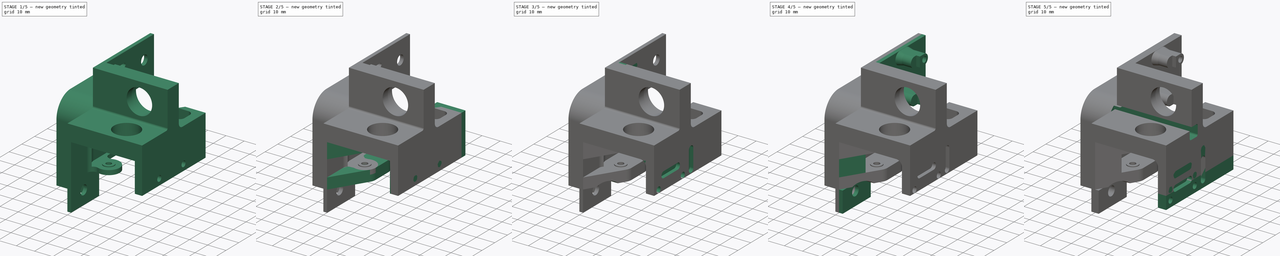
[diagram: build sequence overview — one tinted view per stage of 5, left to right]
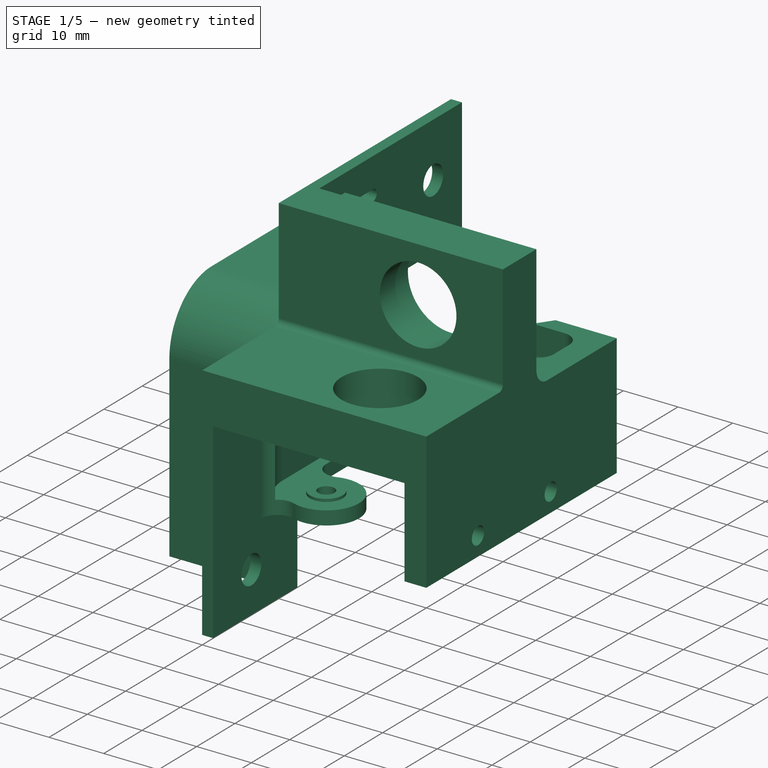
[diagram: stage 1 of 5 — iso view after this stage's code; geometry added in this stage tinted green]
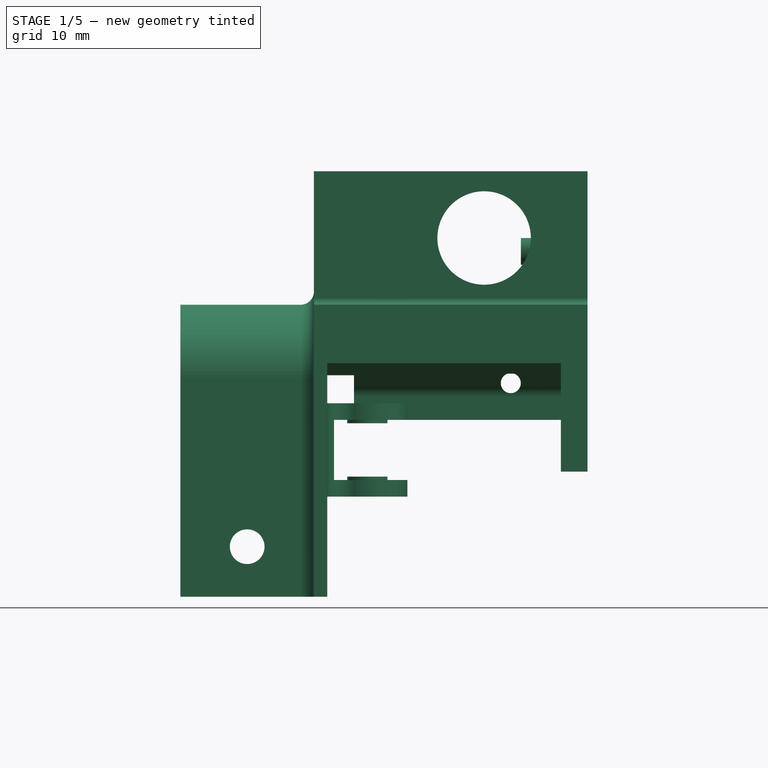
[diagram: stage 1 of 5 — front view after this stage's code; geometry added in this stage tinted green]
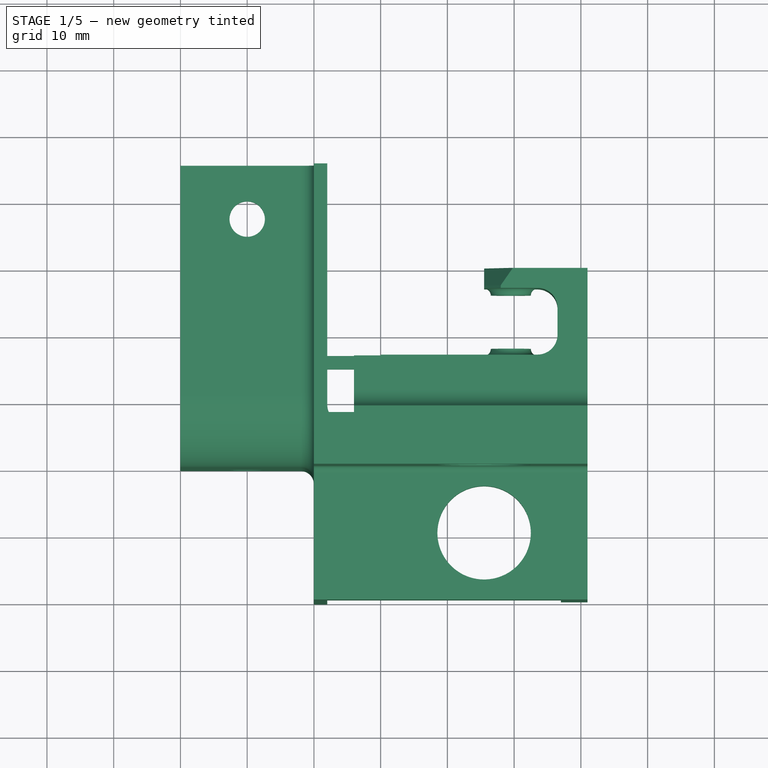
[diagram: stage 1 of 5 — top view after this stage's code; geometry added in this stage tinted green]
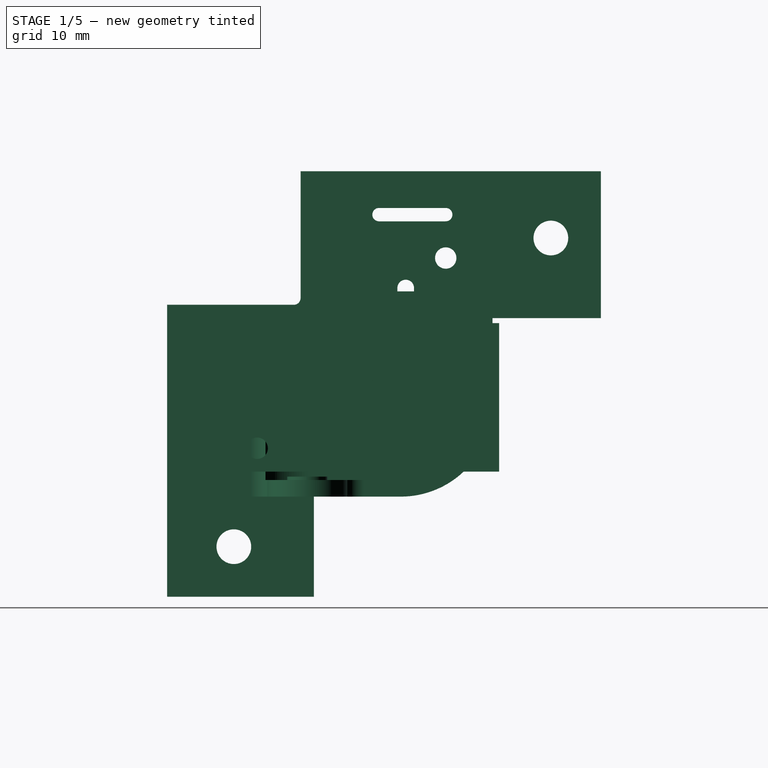
[diagram: stage 1 of 5 — right view after this stage's code; geometry added in this stage tinted green]
FCSTD DOCUMENT  (FreeCAD 0.19R)
Label: support_roulements_et_contacteurs
License: All rights reserved
LicenseURL: http://en.wikipedia.org/wiki/All_rights_reserved
objects: Sketcher::SketchObject×45, PartDesign::Pad×23, PartDesign::Pocket×20, PartDesign::Fillet×7, PartDesign::Chamfer×3, Part::Feature×1, PartDesign::FeatureBase×1, PartDesign::AdditivePipe×1, PartDesign::Body×1
note: 156 computed .brp shape members not serialized (recipe doc carries the construction recipe); baked Part::Feature solids carry a one-line shape summary decoded from their .brp

FEATURE [Part::Feature] Part__Feature128  label="fixation tendeur extr謩t螓ymtrieDfaut"
  Placement = pos=(1,0,-8) rot=(0.57735,-0.57735,0.57735;2.0944rad)
  shape: bbox 65 x 63.75 x 61 mm, 164 faces (baked)
FEATURE [PartDesign::FeatureBase] BaseFeature
  BaseFeature = -> Part__Feature128
FEATURE [Sketcher::SketchObject] Sketch
  FullyConstrained = false
  MapMode = 5
  Placement = pos=(0,-20,0) rot=(1,0,0;1.5708rad)
  Support = -> [BaseFeature]
  sketch-geometry (4):
    g0: LineSegment StartX=1.76513 StartY=20.862 StartZ=0 EndX=16.8711 EndY=20.862 EndZ=0
    g1: LineSegment StartX=16.8711 StartY=20.862 StartZ=0 EndX=16.8711 EndY=14.3258 EndZ=0
    g2: LineSegment StartX=16.8711 StartY=14.3258 StartZ=0 EndX=1.76513 EndY=14.3258 EndZ=0
    g3: LineSegment StartX=1.76513 StartY=14.3258 StartZ=0 EndX=1.76513 EndY=20.862 EndZ=0
  constraints (8):
    c: Coincident(g0,g1)
    c: Coincident(g1,g2)
    c: Coincident(g2,g3)
    c: Coincident(g3,g0)
    c: Horizontal(g0)
    c: Horizontal(g2)
    c: Vertical(g1)
    c: Vertical(g3)
FEATURE [Sketcher::SketchObject] Sketch001
  ExternalGeometry = -> [Sketch,BaseFeature]
  FullyConstrained = false
  MapMode = 5
  Placement = pos=(0,0,0) rot=(0.57735,-0.57735,-0.57735;2.0944rad)
  Support = -> [BaseFeature]
  sketch-geometry (3):
    g0: LineSegment StartX=20 StartY=17.5939 StartZ=0 EndX=0.625 EndY=17.5939 EndZ=0
    g1: LineSegment StartX=-4.375 StartY=41.7496 StartZ=0 EndX=-4.375 EndY=22.5939 EndZ=0
    g2: ArcOfCircle CenterX=0.625 CenterY=22.5939 CenterZ=0 NormalX=0 NormalY=0 NormalZ=1 AngleXU=0 Radius=5 StartAngle=3.14159 EndAngle=4.71239
  constraints (6):
    c: Tangent(g0,g2) = 1.5708
    c: Tangent(g1,g2) = -1.5708
    c: Radius(g2) = 5
    c: PointOnObject(g0,g-3)
    c: Symmetric(g-3,g-3,g0)
    c: Symmetric(g-4,g-4,g1)
FEATURE [PartDesign::AdditivePipe] AdditivePipe
  AuxilleryCurvelinear = true
  AuxillerySpineTangent = false
  BaseFeature = -> BaseFeature
  Binormal = (0,0,0)
  Mode = 0
  Profile = -> Sketch
  Spine = -> Sketch001 [Edge1,Edge2,Edge3]
  SpineTangent = false
  Transformation = 0
  Transition = 0
FEATURE [Sketcher::SketchObject] Sketch003
  ExternalGeometry = -> [AdditivePipe]
  FullyConstrained = false
  MapMode = 5
  Placement = pos=(-1,0,0) rot=(-0.57735,0.57735,0.57735;4.18879rad)
  Support = -> [AdditivePipe]
  sketch-geometry (7):
    g0: LineSegment StartX=-33 StartY=19.75 StartZ=0 EndX=-33 EndY=0.516685 EndZ=0
    g1: LineSegment StartX=-20 StartY=-7 StartZ=0 EndX=-2 EndY=-7 EndZ=0
    g2: LineSegment StartX=-2 StartY=-7 StartZ=0 EndX=-2 EndY=10.75 EndZ=0
    g3: LineSegment StartX=-33 StartY=19.75 StartZ=0 EndX=-11 EndY=19.75 EndZ=0
    g4: ArcOfCircle CenterX=-11 CenterY=10.75 CenterZ=0 NormalX=0 NormalY=0 NormalZ=1 AngleXU=0 Radius=9 StartAngle=9.875e-13 EndAngle=1.5708
    g5: Circle CenterX=-15 CenterY=6.75 CenterZ=0 NormalX=0 NormalY=0 NormalZ=1 AngleXU=0 Radius=9.02565
    g6: ArcOfCircle CenterX=-20 CenterY=8 CenterZ=0 NormalX=0 NormalY=0 NormalZ=1 AngleXU=0 Radius=15 StartAngle=3.66391 EndAngle=4.71239
  constraints (6):
    c: Coincident(g2,g1)
    c: Coincident(g3,g0)
    c: Coincident(g2,g4)
    c: Tangent(g4,g3) = 1.5708
    c: Coincident(g0,g6)
    c: Tangent(g6,g1) = -1.5708
FEATURE [PartDesign::Pad] Pad
  BaseFeature = -> AdditivePipe
  Direction = (1,1,1)
  Length = 10
  Length2 = 100
  Profile = -> Sketch003
  Type = 0
FEATURE [Sketcher::SketchObject] Sketch005
  ExternalGeometry = -> [Pad]
  FullyConstrained = true
  MapMode = 5
  Placement = pos=(41,0,0) rot=(0.57735,0.57735,0.57735;2.0944rad)
  Support = -> [Pad]
  sketch-geometry (8):
    g0: ArcOfCircle CenterX=8.4 CenterY=30 CenterZ=0 NormalX=0 NormalY=0 NormalZ=1 AngleXU=0 Radius=2.25 StartAngle=1.5708 EndAngle=4.71239
    g1: ArcOfCircle CenterX=18.4 CenterY=30 CenterZ=0 NormalX=0 NormalY=0 NormalZ=1 AngleXU=0 Radius=2.25 StartAngle=4.71239 EndAngle=7.85398
    g2: LineSegment StartX=8.4 StartY=27.75 StartZ=0 EndX=18.4 EndY=27.75 EndZ=0
    g3: LineSegment StartX=8.4 StartY=32.25 StartZ=0 EndX=18.4 EndY=32.25 EndZ=0
    g4: ArcOfCircle CenterX=33.25 CenterY=10.25 CenterZ=0 NormalX=0 NormalY=0 NormalZ=1 AngleXU=0 Radius=1.75 StartAngle=7.099e-13 EndAngle=3.14159
    g5: ArcOfCircle CenterX=33.25 CenterY=0.25 CenterZ=0 NormalX=0 NormalY=0 NormalZ=1 AngleXU=0 Radius=1.75 StartAngle=3.14159 EndAngle=6.28319
    g6: LineSegment StartX=31.5 StartY=10.25 StartZ=0 EndX=31.5 EndY=0.25 EndZ=0
    g7: LineSegment StartX=35 StartY=10.25 StartZ=0 EndX=35 EndY=0.25 EndZ=0
  constraints (20):
    c: Tangent(g0,g3) = 1.5708
    c: Tangent(g0,g2) = -1.5708
    c: Tangent(g2,g1) = -1.5708
    c: Tangent(g3,g1) = 1.5708
    c: Horizontal(g2)
    c: Equal(g0,g1)
    c: Tangent(g4,g7) = 1.5708
    c: Tangent(g4,g6) = -1.5708
    c: Tangent(g6,g5) = -1.5708
    c: Tangent(g7,g5) = 1.5708
    c: Vertical(g6)
    c: Equal(g4,g5)
    c: DistanceY(g0,g0) = 4.5
    c: DistanceX(g4,g4) = 3.5
    c: DistanceX(g-3,g0) = 4.4
    c: DistanceX(g2,g2) = 10
    c: DistanceY(g6,g6) = 10
    c: DistanceY(g-4,g5) = 3.5
    c: DistanceX(g-5,g5) = 6.5
    c: DistanceY(g-3,g0) = 5.25
FEATURE [PartDesign::Pocket] Pocket
  BaseFeature = -> Pad
  Length = 3
  Length2 = 100
  Profile = -> Sketch005
  Type = 0
FEATURE [Sketcher::SketchObject] Sketch006
  ExternalGeometry = -> [Pocket]
  FullyConstrained = true
  MapMode = 5
  Placement = pos=(0,0,21.75) rot=(0,0,1;0rad)
  Support = -> [Pocket]
  sketch-geometry (4):
    g0: LineSegment StartX=27 StartY=-20 StartZ=0 EndX=41 EndY=-20 EndZ=0
    g1: LineSegment StartX=41 StartY=-10 StartZ=0 EndX=41 EndY=-20 EndZ=0
    g2: LineSegment StartX=41 StartY=-10 StartZ=0 EndX=37 EndY=-10 EndZ=0
    g3: ArcOfCircle CenterX=27 CenterY=-10 CenterZ=0 NormalX=0 NormalY=0 NormalZ=1 AngleXU=0 Radius=10 StartAngle=4.71239 EndAngle=6.28319
  constraints (9):
    c: Coincident(g0,g-5)
    c: Horizontal(g0)
    c: Coincident(g1,g-3)
    c: Coincident(g1,g0)
    c: Coincident(g2,g1)
    c: Coincident(g2,g-4)
    c: Vertical(g1)
    c: Coincident(g3,g2)
    c: Tangent(g3,g0) = -1.5708
FEATURE [PartDesign::Pad] Pad001
  BaseFeature = -> Pocket
  Direction = (1,1,1)
  Length = 8.75
  Length2 = 100
  Profile = -> Sketch006
  Reversed = true
  Type = 0
FEATURE [Sketcher::SketchObject] Sketch007
  ExternalGeometry = -> [Pad001]
  FullyConstrained = false
  MapMode = 5
  Placement = pos=(0,-3.6e-15,0) rot=(1,0,0;1.5708rad)
  Support = -> [Pad001]
  sketch-geometry (5):
    g0: ArcOfCircle CenterX=27 CenterY=31.75 CenterZ=0 NormalX=0 NormalY=0 NormalZ=1 AngleXU=0 Radius=10 StartAngle=0 EndAngle=1.5708
    g1: LineSegment StartX=27 StartY=41.75 StartZ=0 EndX=41 EndY=41.75 EndZ=0
    g2: LineSegment StartX=41 StartY=41.75 StartZ=0 EndX=41 EndY=31.75 EndZ=0
    g3: LineSegment StartX=41 StartY=31.75 StartZ=0 EndX=37 EndY=31.75 EndZ=0
    g4: LineSegment StartX=37 StartY=31.75 StartZ=0 EndX=37 EndY=26.602 EndZ=0
  constraints (11):
    c: Coincident(g1,g2)
    c: Vertical(g2)
    c: Coincident(g2,g3)
    c: Coincident(g3,g0)
    c: Coincident(g0,g-3)
    c: Coincident(g-4,g2)
    c: Horizontal(g1)
    c: Vertical(g4)
    c: Tangent(g4,g0) = 1.5708
    c: Tangent(g0,g1) = 1.5708
    c: DistanceY(g2,g2) = 10
FEATURE [PartDesign::Pad] Pad002
  BaseFeature = -> Pad001
  Direction = (1,1,1)
  Length = 8.75
  Length2 = 100
  Profile = -> Sketch007
  Reversed = true
  Type = 0
FEATURE [Sketcher::SketchObject] Sketch009
  ExternalGeometry = -> [Pad002]
  FullyConstrained = true
  MapMode = 5
  Placement = pos=(41,0,0) rot=(0.57735,0.57735,0.57735;2.0944rad)
  Support = -> [Pad002]
  sketch-geometry (4):
    g0: ArcOfCircle CenterX=8.4 CenterY=30 CenterZ=0 NormalX=0 NormalY=0 NormalZ=1 AngleXU=0 Radius=2.25 StartAngle=2.25047 EndAngle=4.71239
    g1: LineSegment StartX=6.98579 StartY=31.75 StartZ=0 EndX=8.75 EndY=31.75 EndZ=0
    g2: LineSegment StartX=8.75 StartY=27.75 StartZ=0 EndX=8.4 EndY=27.75 EndZ=0
    g3: LineSegment StartX=8.75 StartY=27.75 StartZ=0 EndX=8.75 EndY=31.75 EndZ=0
  constraints (8):
    c: Coincident(g0,g-6)
    c: Coincident(g0,g-3)
    c: Coincident(g1,g0)
    c: Coincident(g1,g-5)
    c: Coincident(g2,g-4)
    c: Coincident(g3,g2)
    c: Coincident(g3,g1)
    c: Tangent(g2,g0) = 1.5708
FEATURE [PartDesign::Pad] Pad004
  BaseFeature = -> Pad002
  Direction = (1,1,1)
  Length = 10
  Length2 = 100
  Profile = -> Sketch009
  Reversed = true
  Type = 0
FEATURE [Sketcher::SketchObject] Sketch010
  ExternalGeometry = -> [Pad004]
  FullyConstrained = true
  MapMode = 5
  Placement = pos=(41,0,0) rot=(0.57735,0.57735,0.57735;2.0944rad)
  Support = -> [Pad004]
  sketch-geometry (4):
    g0: LineSegment StartX=-20 StartY=13 StartZ=0 EndX=-10 EndY=13 EndZ=0
    g1: LineSegment StartX=-10 StartY=13 StartZ=0 EndX=-10 EndY=-3.25 EndZ=0
    g2: LineSegment StartX=-10 StartY=-3.25 StartZ=0 EndX=-20 EndY=-3.25 EndZ=0
    g3: LineSegment StartX=-20 StartY=-3.25 StartZ=0 EndX=-20 EndY=13 EndZ=0
  constraints (10):
    c: Coincident(g0,g1)
    c: Coincident(g1,g2)
    c: Coincident(g2,g3)
    c: Coincident(g3,g0)
    c: Horizontal(g0)
    c: Horizontal(g2)
    c: Vertical(g1)
    c: Vertical(g3)
    c: Coincident(g0,g-4)
    c: Coincident(g1,g-3)
FEATURE [PartDesign::Pad] Pad005
  BaseFeature = -> Pad004
  Direction = (1,1,1)
  Length = 10
  Length2 = 100
  Profile = -> Sketch010
  Reversed = true
  Type = 3
  UpToFace = -> Pad004 [Face53]
FEATURE [Sketcher::SketchObject] Sketch011
  ExternalGeometry = -> [Pad005]
  FullyConstrained = true
  MapMode = 5
  Placement = pos=(-11,0,0) rot=(0.57735,-0.57735,-0.57735;2.0944rad)
  Support = -> [Pad005]
  sketch-geometry (5):
    g0: LineSegment StartX=-15 StartY=-7 StartZ=0 EndX=-33 EndY=-7 EndZ=0
    g1: LineSegment StartX=-33 StartY=-7 StartZ=0 EndX=-33 EndY=19.75 EndZ=0
    g2: LineSegment StartX=-33 StartY=19.75 StartZ=0 EndX=-28.75 EndY=19.75 EndZ=0
    g3: LineSegment StartX=-28.75 StartY=19.75 StartZ=0 EndX=-28.75 EndY=6.75 EndZ=0
    g4: ArcOfCircle CenterX=-15 CenterY=6.75 CenterZ=0 NormalX=0 NormalY=0 NormalZ=1 AngleXU=0 Radius=13.75 StartAngle=3.14159 EndAngle=4.71239
  constraints (12):
    c: Horizontal(g0)
    c: Coincident(g0,g1)
    c: Coincident(g1,g-4)
    c: Vertical(g1)
    c: Coincident(g1,g2)
    c: Coincident(g2,g3)
    c: Vertical(g3)
    c: Tangent(g4,g3) = -1.5708
    c: Tangent(g4,g0) = 1.5708
    c: PointOnObject(g-3,g0)
    c: Horizontal(g2)
    c: Coincident(g4,g-5)
FEATURE [PartDesign::Pocket] Pocket001
  BaseFeature = -> Pad005
  Length = 14
  Length2 = 100
  Profile = -> Sketch011
  Type = 0
FEATURE [Sketcher::SketchObject] Sketch012
  ExternalGeometry = -> [Pocket001]
  FullyConstrained = true
  MapMode = 5
  Placement = pos=(0,33,0) rot=(0,0.707107,0.707107;3.14159rad)
  Support = -> [Pocket001]
  sketch-geometry (6):
    g0: LineSegment StartX=2 StartY=21.75 StartZ=0 EndX=20 EndY=21.75 EndZ=0
    g1: LineSegment StartX=20 StartY=21.75 StartZ=0 EndX=20 EndY=19.75 EndZ=0
    g2: LineSegment StartX=20 StartY=19.75 StartZ=0 EndX=-2 EndY=19.75 EndZ=0
    g3: LineSegment StartX=-2 StartY=19.75 StartZ=0 EndX=-2 EndY=23.75 EndZ=0
    g4: LineSegment StartX=-2 StartY=23.75 StartZ=0 EndX=5.8e-15 EndY=23.75 EndZ=0
    g5: ArcOfCircle CenterX=2 CenterY=23.75 CenterZ=0 NormalX=0 NormalY=0 NormalZ=1 AngleXU=0 Radius=2 StartAngle=3.14159 EndAngle=4.71239
  constraints (12):
    c: Coincident(g0,g-8)
    c: Coincident(g0,g-3)
    c: Coincident(g0,g1)
    c: Coincident(g1,g-4)
    c: Coincident(g1,g2)
    c: Coincident(g2,g-5)
    c: Coincident(g2,g3)
    c: Coincident(g3,g-6)
    c: Coincident(g3,g4)
    c: Coincident(g4,g-7)
    c: Coincident(g5,g4)
    c: Tangent(g5,g0) = -1.5708
FEATURE [PartDesign::Pad] Pad006
  BaseFeature = -> Pocket001
  Direction = (1,1,1)
  Length = 12
  Length2 = 100
  Profile = -> Sketch012
  Type = 0
FEATURE [Sketcher::SketchObject] Sketch013
  ExternalGeometry = -> [Pad006]
  FullyConstrained = true
  MapMode = 5
  Placement = pos=(0,4.3e-15,19.75) rot=(1,0,0;3.14159rad)
  Support = -> [Pad006]
  sketch-geometry (1):
    g0: Circle CenterX=-10 CenterY=-37 CenterZ=0 NormalX=0 NormalY=0 NormalZ=1 AngleXU=0 Radius=2.65
  constraints (3):
    c: Radius(g0) = 2.65
    c: DistanceX(g0,g-3) = 10
    c: DistanceY(g-3,g0) = 8
FEATURE [PartDesign::Pocket] Pocket002
  BaseFeature = -> Pad006
  Length = 5
  Length2 = 100
  Profile = -> Sketch013
  Type = 0
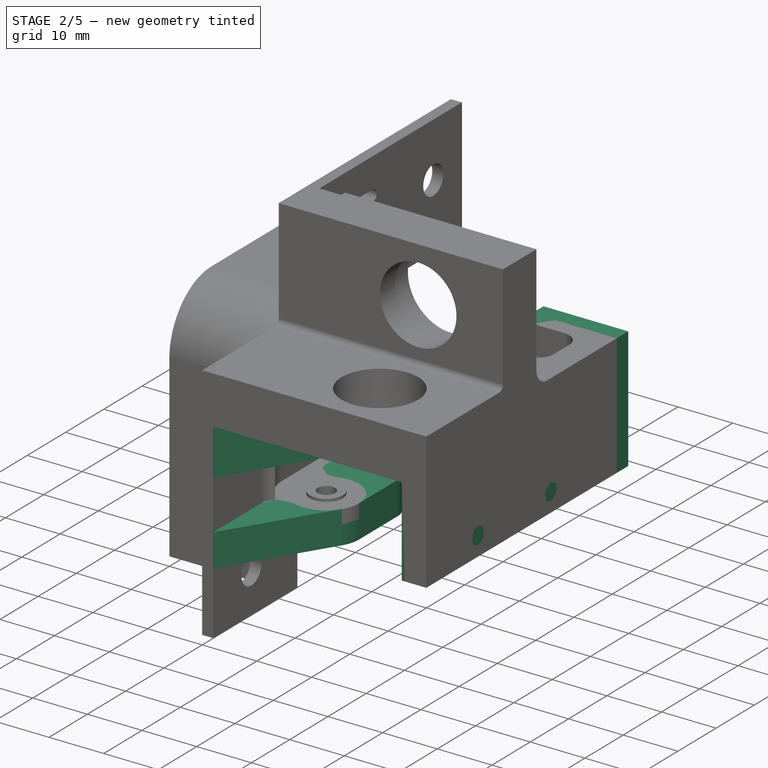
[diagram: stage 2 of 5 — iso view after this stage's code; geometry added in this stage tinted green]
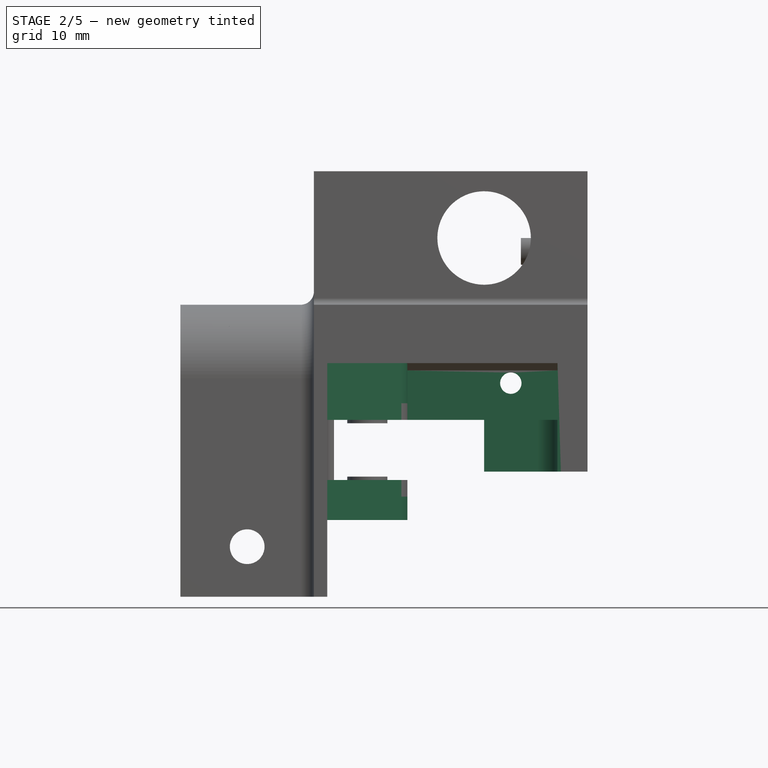
[diagram: stage 2 of 5 — front view after this stage's code; geometry added in this stage tinted green]
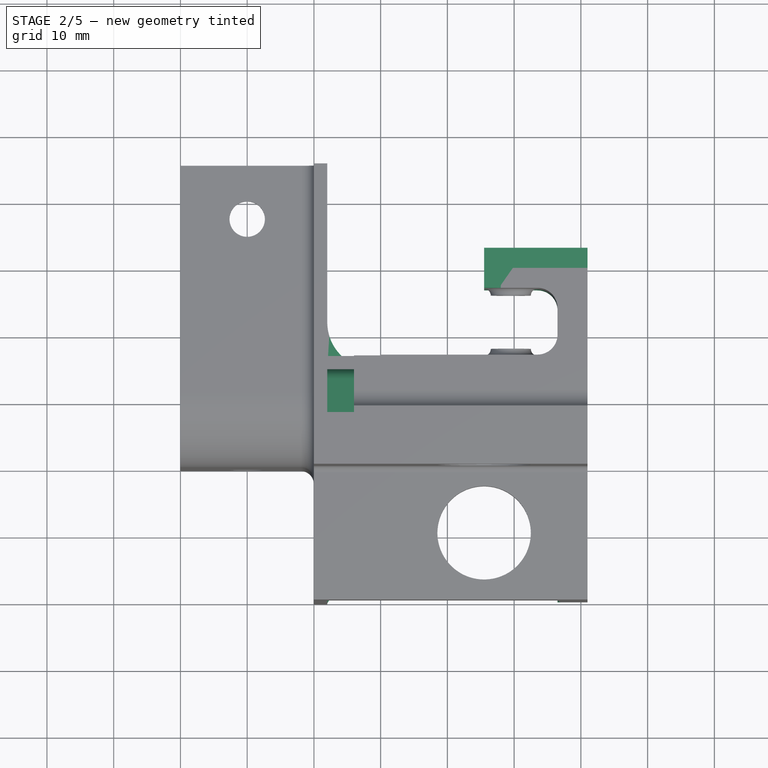
[diagram: stage 2 of 5 — top view after this stage's code; geometry added in this stage tinted green]
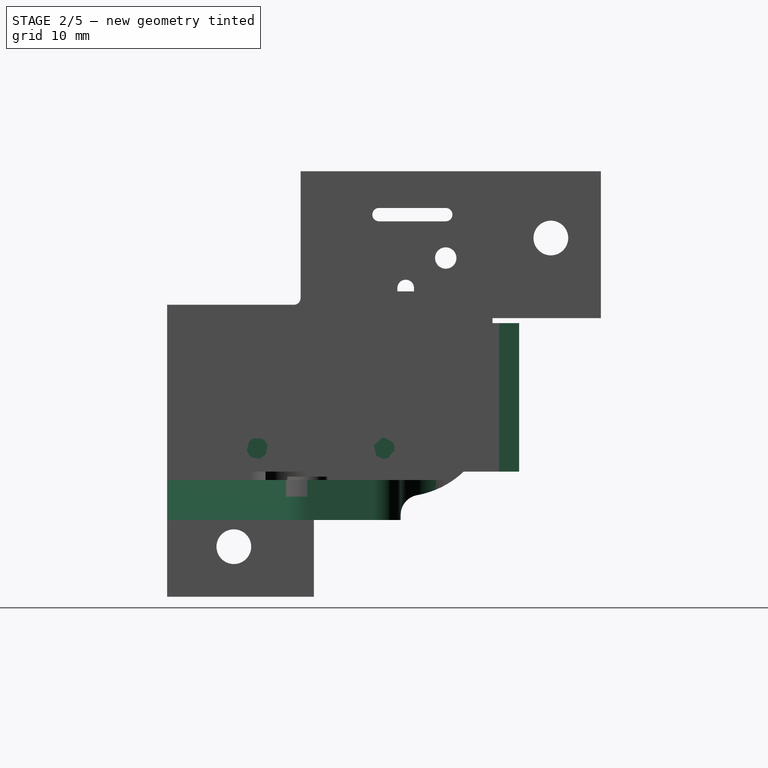
[diagram: stage 2 of 5 — right view after this stage's code; geometry added in this stage tinted green]
FEATURE [Sketcher::SketchObject] Sketch014
  ExternalGeometry = -> [Pocket002]
  FullyConstrained = true
  MapMode = 5
  Placement = pos=(37,0,0) rot=(0.57735,-0.57735,-0.57735;2.0944rad)
  Support = -> [Pocket002]
  sketch-geometry (5):
    g0: LineSegment StartX=-14.75 StartY=4.5 StartZ=0 EndX=-14.75 EndY=7.92501 EndZ=0
    g1: LineSegment StartX=-13.2189 StartY=9.86926 StartZ=0 EndX=-4.75 EndY=11.9118 EndZ=0
    g2: ArcOfCircle CenterX=-12.75 CenterY=7.92501 CenterZ=0 NormalX=0 NormalY=0 NormalZ=1 AngleXU=0 Radius=2 StartAngle=1.80745 EndAngle=3.14159
    g3: LineSegment StartX=-14.75 StartY=4.5 StartZ=0 EndX=-4.75 EndY=4.5 EndZ=0
    g4: LineSegment StartX=-4.75 StartY=11.9118 StartZ=0 EndX=-4.75 EndY=4.5 EndZ=0
  constraints (13):
    c: Coincident(g0,g-3)
    c: Coincident(g0,g-4)
    c: Coincident(g1,g-5)
    c: PointOnObject(g-6,g1)
    c: Coincident(g2,g0)
    c: Coincident(g2,g-5)
    c: Radius(g2) = 2
    c: Coincident(g3,g0)
    c: Horizontal(g3)
    c: Coincident(g4,g1)
    c: Coincident(g4,g3)
    c: Vertical(g4)
    c: DistanceX(g3,g3) = 10
FEATURE [PartDesign::Pad] Pad007
  BaseFeature = -> Pocket002
  Direction = (1,1,1)
  Length = 35
  Length2 = 100
  Profile = -> Sketch014
  Type = 0
FEATURE [Sketcher::SketchObject] Sketch016
  ExternalGeometry = -> [Pad007]
  FullyConstrained = true
  MapMode = 5
  Placement = pos=(0,29.75,0) rot=(0,0.707107,0.707107;3.14159rad)
  Support = -> [Pad007]
  sketch-geometry (1):
    g0: Circle CenterX=-29.5 CenterY=10 CenterZ=0 NormalX=0 NormalY=0 NormalZ=1 AngleXU=0 Radius=1.6
  constraints (2):
    c: Coincident(g0,g-3)
    c: Radius(g0) = 1.6
FEATURE [PartDesign::Pocket] Pocket003
  BaseFeature = -> Pad007
  Length = 5
  Length2 = 100
  Profile = -> Sketch016
  Type = 1
FEATURE [Sketcher::SketchObject] Sketch017
  ExternalGeometry = -> [Pocket003]
  FullyConstrained = true
  MapMode = 5
  Placement = pos=(0,0,4.5) rot=(1,0,0;3.14159rad)
  Support = -> [Pocket003]
  sketch-geometry (5):
    g0: LineSegment StartX=14 StartY=-4.75 StartZ=0 EndX=2 EndY=-4.75 EndZ=0
    g1: LineSegment StartX=2 StartY=-4.75 StartZ=0 EndX=2 EndY=20 EndZ=0
    g2: LineSegment StartX=14 StartY=-1 StartZ=0 EndX=14 EndY=-4.75 EndZ=0
    g3: LineSegment StartX=2 StartY=20 StartZ=0 EndX=13.0943 EndY=2.16981 EndZ=0
    g4: ArcOfCircle CenterX=8 CenterY=-1 CenterZ=0 NormalX=0 NormalY=0 NormalZ=1 AngleXU=0 Radius=6 StartAngle=-3.242e-13 EndAngle=0.556599
  constraints (12):
    c: Coincident(g2,g0)
    c: Coincident(g0,g1)
    c: Horizontal(g0)
    c: Vertical(g1)
    c: PointOnObject(g-3,g0)
    c: Coincident(g3,g1)
    c: Tangent(g2,g4) = 1.5708
    c: Tangent(g3,g4) = 1.5708
    c: DistanceX(g0,g0) = 12
    c: Coincident(g1,g-4)
    c: Vertical(g2)
    c: Coincident(g4,g-5)
FEATURE [PartDesign::Pad] Pad008
  BaseFeature = -> Pocket003
  Direction = (1,1,1)
  Length = 10
  Length2 = 100
  Profile = -> Sketch017
  Reversed = true
  Type = 0
FEATURE [Sketcher::SketchObject] Sketch018
  ExternalGeometry = -> [Pad008]
  FullyConstrained = true
  MapMode = 5
  Placement = pos=(0,0,-4.5) rot=(0,0,1;0rad)
  Support = -> [Pad008]
  sketch-geometry (8):
    g0: LineSegment StartX=2 StartY=-20 StartZ=0 EndX=13.0943 EndY=-2.16981 EndZ=0
    g1: ArcOfCircle CenterX=8 CenterY=1 CenterZ=0 NormalX=0 NormalY=0 NormalZ=1 AngleXU=0 Radius=6 StartAngle=5.72659 EndAngle=6.28319
    g2: LineSegment StartX=14 StartY=11 StartZ=0 EndX=14 EndY=1 EndZ=0
    g3: LineSegment StartX=2 StartY=-20 StartZ=0 EndX=2 EndY=2 EndZ=0
    g4: LineSegment StartX=10 StartY=15 StartZ=0 EndX=-11 EndY=15 EndZ=0
    g5: ArcOfCircle CenterX=10 CenterY=11 CenterZ=0 NormalX=0 NormalY=0 NormalZ=1 AngleXU=0 Radius=4 StartAngle=0 EndAngle=1.5708
    g6: LineSegment StartX=2 StartY=2 StartZ=0 EndX=-11 EndY=2 EndZ=0
    g7: LineSegment StartX=-11 StartY=2 StartZ=0 EndX=-11 EndY=15 EndZ=0
  constraints (19):
    c: Coincident(g0,g-3)
    c: Coincident(g0,g-4)
    c: Coincident(g1,g-5)
    c: Coincident(g-4,g1)
    c: Tangent(g1,g2) = 1.5708
    c: Coincident(g-3,g3)
    c: Vertical(g2)
    c: Horizontal(g4)
    c: Vertical(g3)
    c: Tangent(g4,g5) = -1.5708
    c: Tangent(g2,g5) = 1.5708
    c: Radius(g5) = 4
    c: Horizontal(g6)
    c: Coincident(g3,g6)
    c: Vertical(g7)
    c: Coincident(g4,g7)
    c: Coincident(g6,g7)
    c: PointOnObject(g-6,g6)
    c: Coincident(g-7,g4)
FEATURE [PartDesign::Pad] Pad009
  BaseFeature = -> Pad008
  Direction = (1,1,1)
  Length = 6
  Length2 = 100
  Profile = -> Sketch018
  Reversed = true
  Type = 0
FEATURE [PartDesign::Fillet] Fillet
  Base = -> Pad009 [Edge69,Edge68]
  BaseFeature = -> Pad009
  Radius = 3
  SupportTransform = false
FEATURE [PartDesign::Fillet] Fillet001
  Base = -> Fillet [Edge55,Edge54]
  BaseFeature = -> Fillet
  Radius = 7
  SupportTransform = false
FEATURE [PartDesign::Fillet] Fillet002
  Base = -> Fillet001 [Edge23,Edge25,Edge26,Edge87,Edge85]
  BaseFeature = -> Fillet001
  Radius = 5
  SupportTransform = false
FEATURE [Sketcher::SketchObject] Sketch019
  ExternalGeometry = -> [Fillet002]
  FullyConstrained = true
  MapMode = 5
  Placement = pos=(0,26.75,0) rot=(1,0,0;1.5708rad)
  Support = -> [Fillet002]
  sketch-geometry (5):
    g0: LineSegment StartX=41 StartY=19 StartZ=0 EndX=25.5 EndY=19 EndZ=0
    g1: LineSegment StartX=25.5 StartY=19 StartZ=0 EndX=25.5 EndY=-3.25 EndZ=0
    g2: LineSegment StartX=25.5 StartY=-3.25 StartZ=0 EndX=41 EndY=-3.25 EndZ=0
    g3: LineSegment StartX=41 StartY=-3.25 StartZ=0 EndX=41 EndY=19 EndZ=0
    g4: Circle CenterX=29.5 CenterY=10 CenterZ=0 NormalX=0 NormalY=0 NormalZ=1 AngleXU=0 Radius=1.6
  constraints (13):
    c: Coincident(g0,g1)
    c: Coincident(g1,g2)
    c: Coincident(g2,g3)
    c: Coincident(g3,g0)
    c: Horizontal(g0)
    c: Horizontal(g2)
    c: Vertical(g1)
    c: Vertical(g3)
    c: Coincident(g0,g-4)
    c: PointOnObject(g-5,g1)
    c: PointOnObject(g-3,g2)
    c: Coincident(g4,g-6)
    c: Radius(g4) = 1.6
FEATURE [PartDesign::Pad] Pad010
  BaseFeature = -> Fillet002
  Direction = (1,1,1)
  Length = 6
  Length2 = 100
  Profile = -> Sketch019
  Reversed = true
  Type = 0
FEATURE [Sketcher::SketchObject] Sketch020
  ExternalGeometry = -> [Pad010]
  FullyConstrained = true
  MapMode = 5
  Placement = pos=(0,0,4.5) rot=(1,0,0;3.14159rad)
  Support = -> [Pad010]
  sketch-geometry (5):
    g0: LineSegment StartX=33.5 StartY=-26.75 StartZ=0 EndX=37 EndY=-26.75 EndZ=0
    g1: LineSegment StartX=37 StartY=-26.75 StartZ=0 EndX=37 EndY=-4.75 EndZ=0
    g2: LineSegment StartX=37 StartY=-4.75 StartZ=0 EndX=36.5 EndY=-4.75 EndZ=0
    g3: LineSegment StartX=36.5 StartY=-4.75 StartZ=0 EndX=36.5 EndY=-23.75 EndZ=0
    g4: ArcOfCircle CenterX=33.5 CenterY=-23.75 CenterZ=0 NormalX=0 NormalY=0 NormalZ=1 AngleXU=0 Radius=3 StartAngle=4.71239 EndAngle=6.28319
  constraints (11):
    c: Coincident(g0,g-3)
    c: Coincident(g0,g-4)
    c: Coincident(g0,g1)
    c: Coincident(g1,g-5)
    c: Coincident(g1,g2)
    c: Horizontal(g2)
    c: Coincident(g2,g3)
    c: Vertical(g3)
    c: Coincident(g-6,g3)
    c: Coincident(g4,g0)
    c: Tangent(g4,g3) = 1.5708
FEATURE [PartDesign::Pad] Pad011
  BaseFeature = -> Pad010
  Direction = (1,1,1)
  Length = 8
  Length2 = 100
  Profile = -> Sketch020
  Type = 3
  UpToFace = -> Pad010 [Face125]
FEATURE [Sketcher::SketchObject] Sketch021
  ExternalGeometry = -> [Pad011]
  FullyConstrained = true
  MapMode = 5
  Placement = pos=(41,0,0) rot=(0.57735,0.57735,0.57735;2.0944rad)
  Support = -> [Pad011]
  sketch-geometry (4):
    g0: LineSegment StartX=-20 StartY=13 StartZ=0 EndX=26.75 EndY=13 EndZ=0
    g1: LineSegment StartX=26.75 StartY=13 StartZ=0 EndX=26.75 EndY=-3.25 EndZ=0
    g2: LineSegment StartX=26.75 StartY=-3.25 StartZ=0 EndX=-20 EndY=-3.25 EndZ=0
    g3: LineSegment StartX=-20 StartY=-3.25 StartZ=0 EndX=-20 EndY=13 EndZ=0
  constraints (10):
    c: Coincident(g0,g1)
    c: Coincident(g1,g2)
    c: Coincident(g2,g3)
    c: Coincident(g3,g0)
    c: Horizontal(g0)
    c: Horizontal(g2)
    c: Vertical(g1)
    c: Vertical(g3)
    c: Coincident(g0,g-3)
    c: Coincident(g1,g-4)
FEATURE [PartDesign::Pad] Pad012
  BaseFeature = -> Pad011
  Direction = (1,1,1)
  Length = 10
  Length2 = 100
  Profile = -> Sketch021
  Reversed = true
  Type = 3
  UpToFace = -> Pad011 [Face57]
FEATURE [Sketcher::SketchObject] Sketch022
  ExternalGeometry = -> [Pad012]
  FullyConstrained = true
  MapMode = 5
  Placement = pos=(0,0,-10.5) rot=(1,0,0;3.14159rad)
  Support = -> [Pad012]
  sketch-geometry (1):
    g0: Circle CenterX=8 CenterY=-1 CenterZ=0 NormalX=0 NormalY=0 NormalZ=1 AngleXU=0 Radius=1.6
  constraints (2):
    c: Coincident(g0,g-3)
    c: Radius(g0) = 1.6
FEATURE [PartDesign::Pocket] Pocket004
  BaseFeature = -> Pad012
  Length = 0
  Length2 = 100
  Profile = -> Sketch022
  Type = 3
  UpToFace = -> Pad012 [Face163]
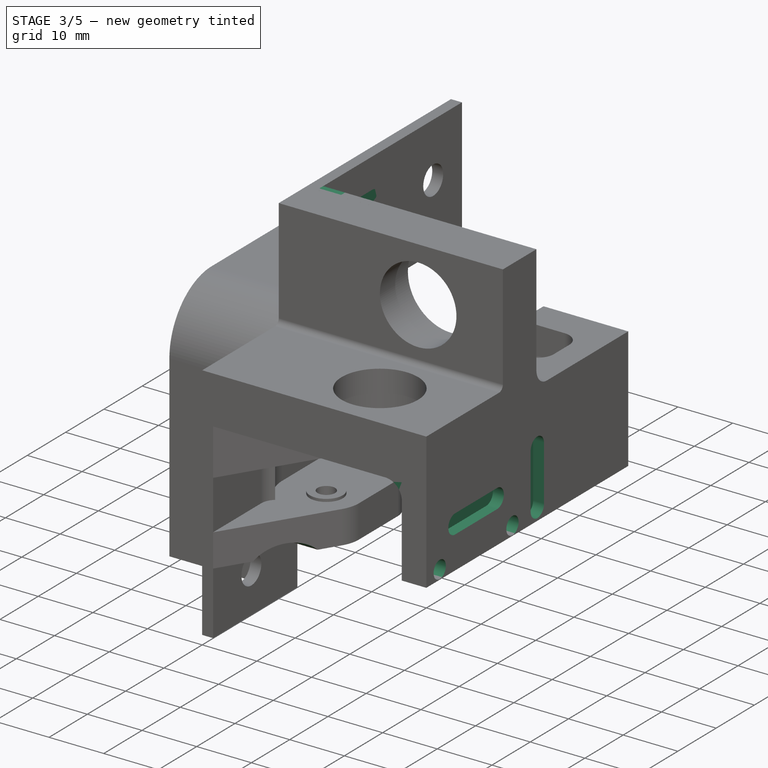
[diagram: stage 3 of 5 — iso view after this stage's code; geometry added in this stage tinted green]
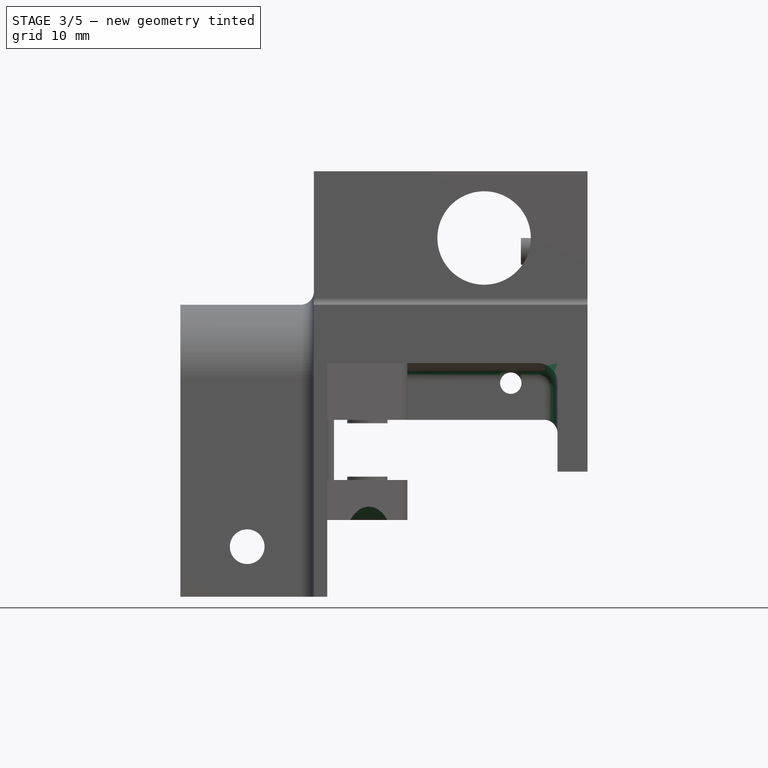
[diagram: stage 3 of 5 — front view after this stage's code; geometry added in this stage tinted green]
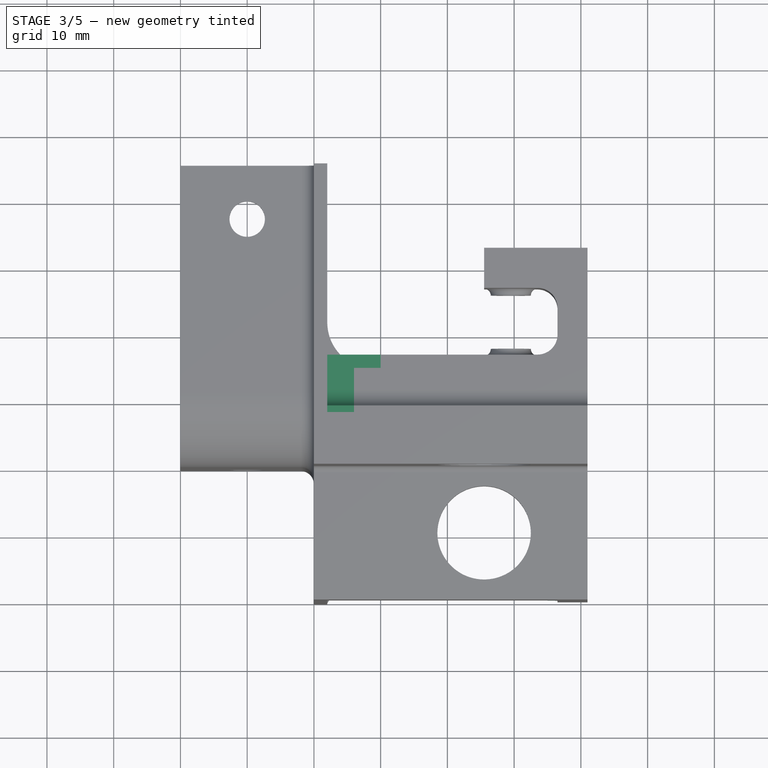
[diagram: stage 3 of 5 — top view after this stage's code; geometry added in this stage tinted green]
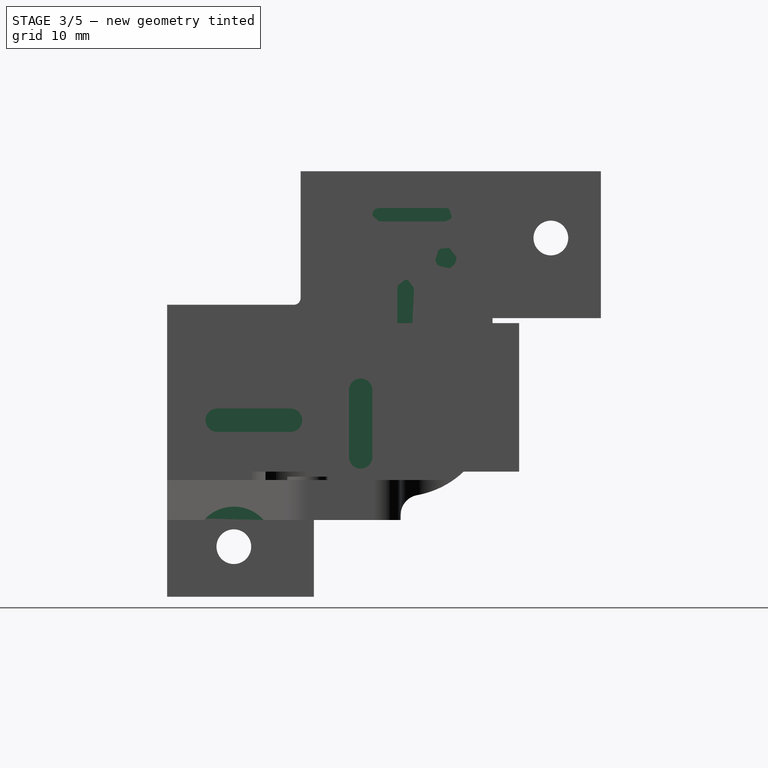
[diagram: stage 3 of 5 — right view after this stage's code; geometry added in this stage tinted green]
FEATURE [Sketcher::SketchObject] Sketch023
  ExternalGeometry = -> [Pocket004]
  FullyConstrained = true
  MapMode = 5
  Placement = pos=(2,-1e-16,0) rot=(0.57735,0.57735,0.57735;2.0944rad)
  Support = -> [Pocket004]
  sketch-geometry (1):
    g0: Circle CenterX=-10 CenterY=-14.5 CenterZ=0 NormalX=0 NormalY=0 NormalZ=1 AngleXU=0 Radius=6
  constraints (2):
    c: Coincident(g0,g-3)
    c: Radius(g0) = 6
FEATURE [PartDesign::Pocket] Pocket005
  BaseFeature = -> Pocket004
  Length = 5
  Length2 = 100
  Profile = -> Sketch023
  Reversed = true
  Type = 1
FEATURE [Sketcher::SketchObject] Sketch024
  ExternalGeometry = -> [Pocket005]
  FullyConstrained = true
  MapMode = 5
  Placement = pos=(0,2,0) rot=(0,0.707107,0.707107;3.14159rad)
  Support = -> [Pocket005]
  sketch-geometry (1):
    g0: Circle CenterX=10 CenterY=-14.5 CenterZ=0 NormalX=0 NormalY=0 NormalZ=1 AngleXU=0 Radius=6
  constraints (2):
    c: Coincident(g0,g-3)
    c: Radius(g0) = 6
FEATURE [PartDesign::Pocket] Pocket006
  BaseFeature = -> Pocket005
  Length = 5
  Length2 = 100
  Profile = -> Sketch024
  Reversed = true
  Type = 1
FEATURE [Sketcher::SketchObject] Sketch025
  ExternalGeometry = -> [Pocket006]
  FullyConstrained = true
  MapMode = 5
  Placement = pos=(2,-1e-16,0) rot=(0.57735,0.57735,0.57735;2.0944rad)
  Support = -> [Pocket006]
  sketch-geometry (10):
    g0: Circle CenterX=21.75 CenterY=28.75 CenterZ=0 NormalX=0 NormalY=0 NormalZ=1 AngleXU=0 Radius=1.6
    g1: Circle CenterX=21.75 CenterY=9.75 CenterZ=0 NormalX=0 NormalY=0 NormalZ=1 AngleXU=0 Radius=1.6
    g2: ArcOfCircle CenterX=15.75 CenterY=14.25 CenterZ=0 NormalX=0 NormalY=0 NormalZ=1 AngleXU=0 Radius=1.25 StartAngle=3.14159 EndAngle=6.28319
    g3: ArcOfCircle CenterX=15.75 CenterY=24.25 CenterZ=0 NormalX=0 NormalY=0 NormalZ=1 AngleXU=0 Radius=1.25 StartAngle=0 EndAngle=3.14159
    g4: LineSegment StartX=17 StartY=14.25 StartZ=0 EndX=17 EndY=24.25 EndZ=0
    g5: LineSegment StartX=14.5 StartY=14.25 StartZ=0 EndX=14.5 EndY=24.25 EndZ=0
    g6: ArcOfCircle CenterX=11.75 CenterY=35.25 CenterZ=0 NormalX=0 NormalY=0 NormalZ=1 AngleXU=0 Radius=1 StartAngle=1.5708 EndAngle=4.71239
    g7: ArcOfCircle CenterX=21.75 CenterY=35.25 CenterZ=0 NormalX=0 NormalY=0 NormalZ=1 AngleXU=0 Radius=1 StartAngle=4.71239 EndAngle=7.85398
    g8: LineSegment StartX=11.75 StartY=34.25 StartZ=0 EndX=21.75 EndY=34.25 EndZ=0
    g9: LineSegment StartX=11.75 StartY=36.25 StartZ=0 EndX=21.75 EndY=36.25 EndZ=0
  constraints (21):
    c: Coincident(g0,g-5)
    c: PointOnObject(g-5,g0)
    c: Coincident(g1,g-8)
    c: PointOnObject(g-8,g1)
    c: Tangent(g2,g5) = 1.5708
    c: Tangent(g2,g4) = -1.5708
    c: Tangent(g4,g3) = -1.5708
    c: Tangent(g5,g3) = 1.5708
    c: Vertical(g4)
    c: Equal(g2,g3)
    c: Coincident(g2,g-7)
    c: PointOnObject(g3,g-6)
    c: Tangent(g6,g9) = 1.5708
    c: Tangent(g6,g8) = -1.5708
    c: Tangent(g8,g7) = -1.5708
    c: Tangent(g9,g7) = 1.5708
    c: Horizontal(g8)
    c: Coincident(g6,g-4)
    c: PointOnObject(g7,g-3)
    c: Coincident(g-3,g7)
    c: PointOnObject(g-6,g4)
FEATURE [PartDesign::Pad] Pad013
  BaseFeature = -> Pocket006
  Direction = (1,1,1)
  Length = 10
  Length2 = 100
  Profile = -> Sketch025
  Reversed = true
  Type = 3
  UpToFace = -> Pocket006 [Face95]
FEATURE [Sketcher::SketchObject] Sketch026
  ExternalGeometry = -> [Pad013]
  FullyConstrained = true
  MapMode = 5
  Placement = pos=(2,-1e-16,0) rot=(0.57735,0.57735,0.57735;2.0944rad)
  Support = -> [Pad013]
  sketch-geometry (7):
    g0: LineSegment StartX=8.75 StartY=41.75 StartZ=0 EndX=7.75 EndY=41.75 EndZ=0
    g1: LineSegment StartX=7.75 StartY=41.75 StartZ=0 EndX=7.75 EndY=4.5 EndZ=0
    g2: LineSegment StartX=7.75 StartY=4.5 StartZ=0 EndX=16.75 EndY=4.5 EndZ=0
    g3: LineSegment StartX=16.75 StartY=4.5 StartZ=0 EndX=16.75 EndY=19 EndZ=0
    g4: LineSegment StartX=8.75 StartY=21.75 StartZ=0 EndX=8.75 EndY=41.75 EndZ=0
    g5: ArcOfCircle CenterX=11.5 CenterY=21.75 CenterZ=0 NormalX=0 NormalY=0 NormalZ=1 AngleXU=0 Radius=2.75 StartAngle=3.14159 EndAngle=4.71239
    g6: LineSegment StartX=11.5 StartY=19 StartZ=0 EndX=16.75 EndY=19 EndZ=0
  constraints (15):
    c: Coincident(g0,g-3)
    c: Coincident(g0,g-4)
    c: Coincident(g0,g1)
    c: Vertical(g1)
    c: Coincident(g1,g2)
    c: Coincident(g2,g-8)
    c: Horizontal(g2)
    c: Coincident(g2,g3)
    c: Coincident(g3,g-5)
    c: Coincident(g4,g-7)
    c: Coincident(g4,g0)
    c: Tangent(g5,g4) = 1.5708
    c: Coincident(g6,g5)
    c: Coincident(g6,g3)
    c: Coincident(g-6,g5)
FEATURE [PartDesign::Pad] Pad014
  BaseFeature = -> Pad013
  Direction = (1,1,1)
  Length = 10
  Length2 = 100
  Profile = -> Sketch026
  Type = 3
  UpToFace = -> Pad013 [Face82]
FEATURE [Sketcher::SketchObject] Sketch027
  ExternalGeometry = -> [Pad014]
  FullyConstrained = true
  MapMode = 5
  Placement = pos=(41,0,0) rot=(0.57735,0.57735,0.57735;2.0944rad)
  Support = -> [Pad014]
  sketch-geometry (3):
    g0: Circle CenterX=-16.5 CenterY=-1.55 CenterZ=0 NormalX=0 NormalY=0 NormalZ=1 AngleXU=0 Radius=1.6
    g1: Circle CenterX=2.5 CenterY=-1.55 CenterZ=0 NormalX=0 NormalY=0 NormalZ=1 AngleXU=0 Radius=1.6
    g2: LineSegment StartX=-16.5 StartY=-1.55 StartZ=0 EndX=2.5 EndY=-1.55 EndZ=0
  constraints (8):
    c: Coincident(g2,g0)
    c: Coincident(g2,g1)
    c: Horizontal(g2)
    c: Radius(g0) = 1.6
    c: Radius(g1) = 1.6
    c: DistanceX(g2,g2) = 19
    c: DistanceX(g-3,g0) = 3.5
    c: DistanceY(g-3,g0) = 1.7
FEATURE [PartDesign::Pocket] Pocket007
  BaseFeature = -> Pad014
  Length = 0
  Length2 = 100
  Profile = -> Sketch027
  Type = 3
  UpToFace = -> Pad014 [Face186]
FEATURE [Sketcher::SketchObject] Sketch028
  ExternalGeometry = -> [Pocket007]
  FullyConstrained = true
  MapMode = 5
  Placement = pos=(41,0,0) rot=(0.57735,0.57735,0.57735;2.0944rad)
  Support = -> [Pocket007]
  sketch-geometry (8):
    g0: ArcOfCircle CenterX=-12.5 CenterY=4.45 CenterZ=0 NormalX=0 NormalY=0 NormalZ=1 AngleXU=0 Radius=1.75 StartAngle=1.5708 EndAngle=4.71239
    g1: ArcOfCircle CenterX=-1.5 CenterY=4.45 CenterZ=0 NormalX=0 NormalY=0 NormalZ=1 AngleXU=0 Radius=1.75 StartAngle=4.71239 EndAngle=7.85398
    g2: LineSegment StartX=-12.5 StartY=2.7 StartZ=0 EndX=-1.5 EndY=2.7 EndZ=0
    g3: LineSegment StartX=-12.5 StartY=6.2 StartZ=0 EndX=-1.5 EndY=6.2 EndZ=0
    g4: ArcOfCircle CenterX=9 CenterY=8.95 CenterZ=0 NormalX=0 NormalY=0 NormalZ=1 AngleXU=0 Radius=1.75 StartAngle=-1.06617e-11 EndAngle=3.14159
    g5: ArcOfCircle CenterX=9 CenterY=-1.05 CenterZ=0 NormalX=0 NormalY=0 NormalZ=1 AngleXU=0 Radius=1.75 StartAngle=3.14159 EndAngle=6.28319
    g6: LineSegment StartX=7.25 StartY=8.95 StartZ=0 EndX=7.25 EndY=-1.05 EndZ=0
    g7: LineSegment StartX=10.75 StartY=8.95 StartZ=0 EndX=10.75 EndY=-1.05 EndZ=0
  constraints (20):
    c: Tangent(g0,g3) = 1.5708
    c: Tangent(g0,g2) = -1.5708
    c: Tangent(g2,g1) = -1.5708
    c: Tangent(g3,g1) = 1.5708
    c: Horizontal(g2)
    c: Equal(g0,g1)
    c: Tangent(g4,g7) = 1.5708
    c: Tangent(g4,g6) = -1.5708
    c: Tangent(g6,g5) = -1.5708
    c: Tangent(g7,g5) = 1.5708
    c: Vertical(g6)
    c: Equal(g4,g5)
    c: DistanceX(g0,g1) = 11
    c: DistanceY(g-3,g0) = 6
    c: DistanceY(g0,g0) = 3.5
    c: DistanceX(g-3,g0) = 4
    c: DistanceX(g-4,g5) = 6.5
    c: DistanceX(g5,g5) = 3.5
    c: DistanceY(g5,g4) = 10
    c: DistanceY(g-4,g5) = 0.5
FEATURE [PartDesign::Pocket] Pocket008
  BaseFeature = -> Pocket007
  Length = 2
  Length2 = 100
  Profile = -> Sketch028
  Type = 0
FEATURE [Sketcher::SketchObject] Sketch029
  ExternalGeometry = -> [Pocket008]
  FullyConstrained = true
  MapMode = 5
  Placement = pos=(0,-7e-16,-3.25) rot=(1,0,0;3.14159rad)
  Support = -> [Pocket008]
  sketch-geometry (4):
    g0: LineSegment StartX=25.5 StartY=-32.75 StartZ=0 EndX=36.5 EndY=-32.75 EndZ=0
    g1: LineSegment StartX=36.5 StartY=-32.75 StartZ=0 EndX=36.5 EndY=-23.75 EndZ=0
    g2: LineSegment StartX=36.5 StartY=-23.75 StartZ=0 EndX=25.5 EndY=-23.75 EndZ=0
    g3: LineSegment StartX=25.5 StartY=-23.75 StartZ=0 EndX=25.5 EndY=-32.75 EndZ=0
  constraints (10):
    c: Coincident(g0,g1)
    c: Coincident(g1,g2)
    c: Coincident(g2,g3)
    c: Coincident(g3,g0)
    c: Horizontal(g0)
    c: Horizontal(g2)
    c: Vertical(g1)
    c: Vertical(g3)
    c: Coincident(g0,g-3)
    c: Coincident(g1,g-4)
FEATURE [PartDesign::Pocket] Pocket009
  BaseFeature = -> Pocket008
  Length = 0
  Length2 = 100
  Profile = -> Sketch029
  Type = 3
  UpToFace = -> Pocket008 [Face99]
FEATURE [PartDesign::Fillet] Fillet003
  Base = -> Pocket009 [Edge554]
  BaseFeature = -> Pocket009
  Radius = 3
  SupportTransform = false
FEATURE [PartDesign::Fillet] Fillet004
  Base = -> Fillet003 [Edge1]
  BaseFeature = -> Fillet003
  Radius = 2
  SupportTransform = false
FEATURE [PartDesign::Fillet] Fillet005
  Base = -> Fillet004 [Edge18,Edge17,Edge57]
  BaseFeature = -> Fillet004
  Radius = 2
  SupportTransform = false
FEATURE [PartDesign::Fillet] Fillet006
  Base = -> Fillet005 [Edge115]
  BaseFeature = -> Fillet005
  Radius = 2
  SupportTransform = false
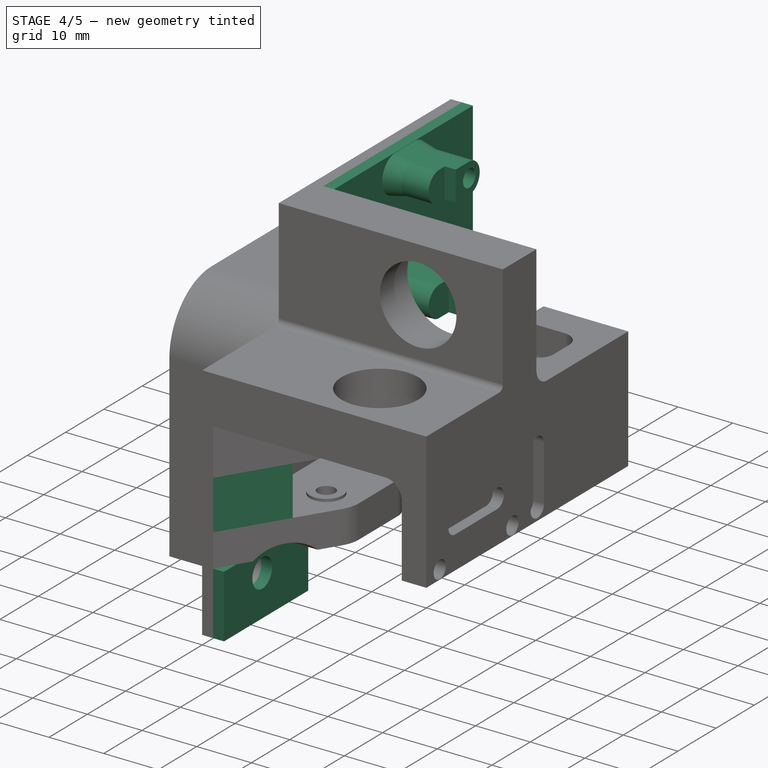
[diagram: stage 4 of 5 — iso view after this stage's code; geometry added in this stage tinted green]
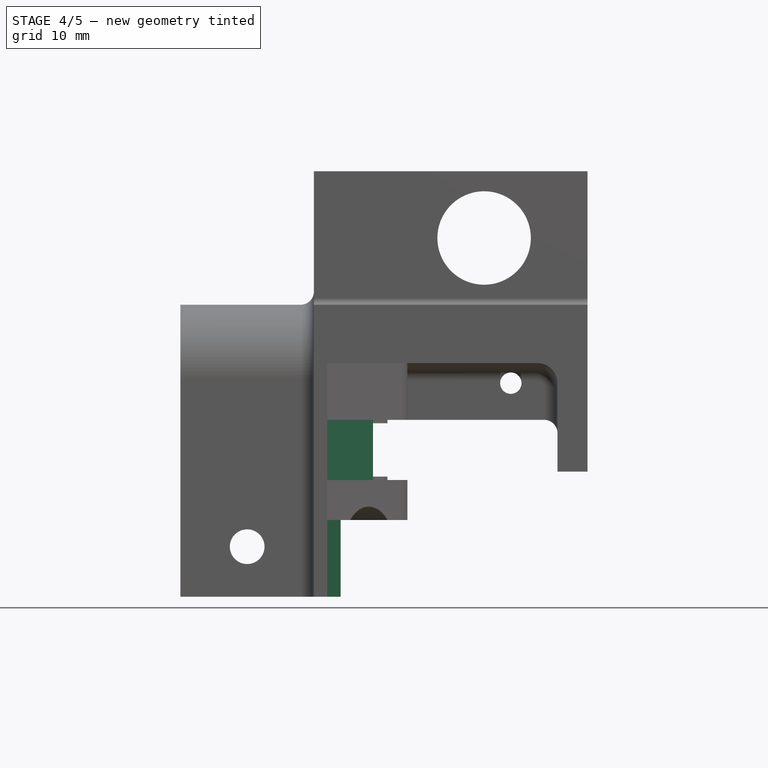
[diagram: stage 4 of 5 — front view after this stage's code; geometry added in this stage tinted green]
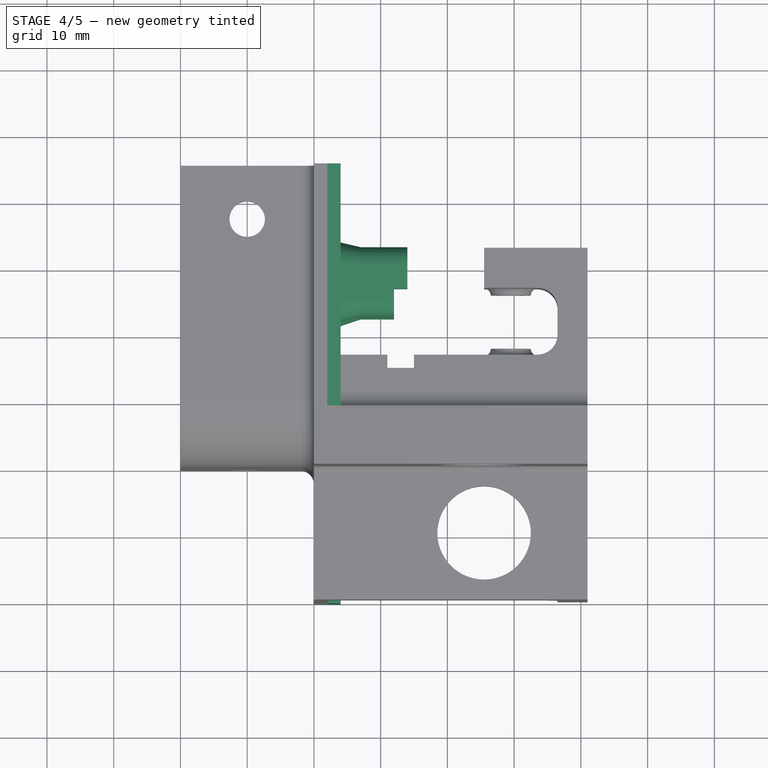
[diagram: stage 4 of 5 — top view after this stage's code; geometry added in this stage tinted green]
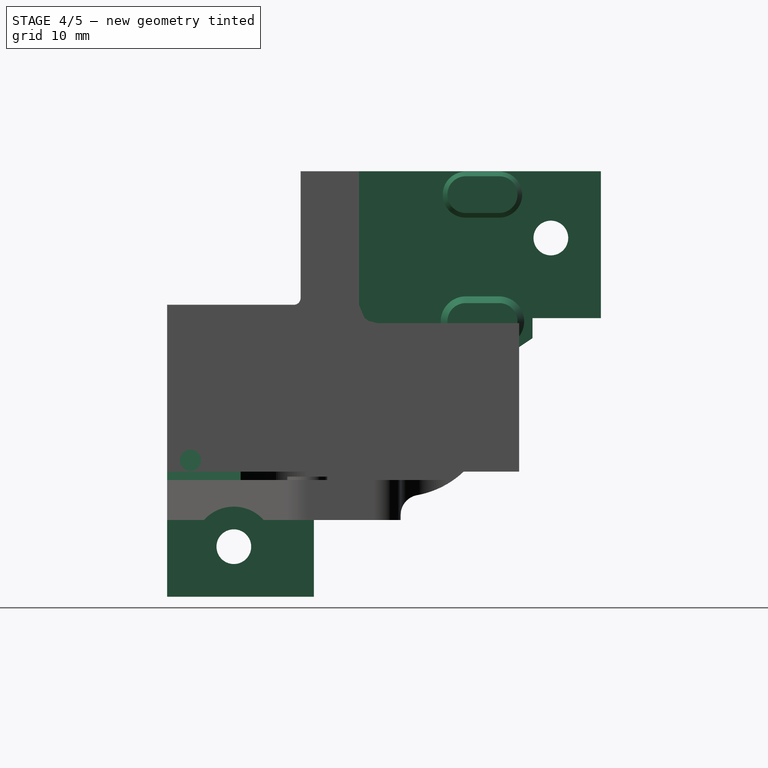
[diagram: stage 4 of 5 — right view after this stage's code; geometry added in this stage tinted green]
FEATURE [Sketcher::SketchObject] Sketch030
  ExternalGeometry = -> [Fillet006]
  FullyConstrained = true
  MapMode = 5
  Placement = pos=(0,0,4.5) rot=(1,0,0;3.14159rad)
  Support = -> [Fillet006]
  sketch-geometry (5):
    g0: LineSegment StartX=2 StartY=20 StartZ=0 EndX=2 EndY=7.48528 EndZ=0
    g1: LineSegment StartX=2 StartY=20 StartZ=0 EndX=8.85341 EndY=8.98559 EndZ=0
    g2: LineSegment StartX=8.85341 StartY=8.98559 StartZ=0 EndX=3.74263 EndY=5.77309 EndZ=0
    g3: ArcOfCircle CenterX=8 CenterY=-1 CenterZ=0 NormalX=0 NormalY=0 NormalZ=1 AngleXU=0 Radius=8 StartAngle=2.13196 EndAngle=2.24553
    g4: ArcOfCircle CenterX=5 CenterY=7.48528 CenterZ=0 NormalX=0 NormalY=0 NormalZ=1 AngleXU=0 Radius=3 StartAngle=3.14159 EndAngle=3.98377
  constraints (11):
    c: Coincident(g0,g-6)
    c: Coincident(g1,g0)
    c: PointOnObject(g-7,g1)
    c: Coincident(g2,g1)
    c: Tangent(g2,g-9)
    c: Coincident(g3,g-3)
    c: Coincident(g3,g-4)
    c: Tangent(g2,g3) = -1.5708
    c: Coincident(g4,g3)
    c: Tangent(g0,g4) = -1.5708
    c: Coincident(g-5,g0)
FEATURE [PartDesign::Pad] Pad015
  BaseFeature = -> Fillet006
  Direction = (1,1,1)
  Length = 10
  Length2 = 100
  Profile = -> Sketch030
  Type = 3
  UpToFace = -> Fillet006 [Face190]
FEATURE [Sketcher::SketchObject] Sketch031
  ExternalGeometry = -> [Pad015]
  FullyConstrained = true
  MapMode = 5
  Placement = pos=(2,-1e-16,0) rot=(0.57735,0.57735,0.57735;2.0944rad)
  Support = -> [Pad015]
  sketch-geometry (7):
    g0: LineSegment StartX=2 StartY=-22 StartZ=0 EndX=-20 EndY=-22 EndZ=0
    g1: LineSegment StartX=-20 StartY=-22 StartZ=0 EndX=-20 EndY=-10.5 EndZ=0
    g2: LineSegment StartX=-20 StartY=-10.5 StartZ=0 EndX=-14.4721 EndY=-10.5 EndZ=0
    g3: LineSegment StartX=2 StartY=-10.5 StartZ=0 EndX=2 EndY=-22 EndZ=0
    g4: ArcOfCircle CenterX=-10 CenterY=-14.5 CenterZ=0 NormalX=0 NormalY=0 NormalZ=1 AngleXU=0 Radius=6 StartAngle=0.729728 EndAngle=2.41186
    g5: LineSegment StartX=-5.52786 StartY=-10.5 StartZ=0 EndX=2 EndY=-10.5 EndZ=0
    g6: Circle CenterX=-10 CenterY=-14.5 CenterZ=0 NormalX=0 NormalY=0 NormalZ=1 AngleXU=0 Radius=2.6
  constraints (17):
    c: Coincident(g0,g1)
    c: Coincident(g1,g2)
    c: Coincident(g5,g3)
    c: Coincident(g3,g0)
    c: Horizontal(g0)
    c: Horizontal(g2)
    c: Vertical(g1)
    c: Vertical(g3)
    c: Coincident(g0,g-4)
    c: Coincident(g1,g-5)
    c: Coincident(g4,g-6)
    c: PointOnObject(g-6,g4)
    c: Coincident(g2,g4)
    c: Coincident(g5,g4)
    c: Tangent(g2,g5)
    c: Coincident(g6,g4)
    c: PointOnObject(g-7,g6)
FEATURE [PartDesign::Pad] Pad016
  BaseFeature = -> Pad015
  Direction = (1,1,1)
  Length = 2
  Length2 = 100
  Profile = -> Sketch031
  Type = 0
FEATURE [Sketcher::SketchObject] Sketch032
  ExternalGeometry = -> [Pad016]
  FullyConstrained = true
  MapMode = 5
  Placement = pos=(2,-1e-16,0) rot=(0.57735,0.57735,0.57735;2.0944rad)
  Support = -> [Pad016]
  sketch-geometry (3):
    g0: Circle CenterX=29.75 CenterY=38.25 CenterZ=0 NormalX=0 NormalY=0 NormalZ=1 AngleXU=0 Radius=1.6
    g1: LineSegment StartX=29.75 StartY=38.25 StartZ=0 EndX=29.75 EndY=19.25 EndZ=0
    g2: Circle CenterX=29.75 CenterY=19.25 CenterZ=0 NormalX=0 NormalY=0 NormalZ=1 AngleXU=0 Radius=1.6
  constraints (8):
    c: Radius(g0) = 1.6
    c: DistanceX(g-3,g0) = 21
    c: DistanceY(g0,g-3) = 3.5
    c: Coincident(g1,g0)
    c: Vertical(g1)
    c: DistanceY(g1,g1) = 19
    c: Coincident(g2,g1)
    c: Equal(g2,g0)
FEATURE [PartDesign::Pad] Pad017
  BaseFeature = -> Pad016
  Direction = (1,1,1)
  Length = 10
  Length2 = 100
  Profile = -> Sketch032
  Type = 0
FEATURE [Sketcher::SketchObject] Sketch033
  ExternalGeometry = -> [Pad016]
  FullyConstrained = true
  MapMode = 5
  Placement = pos=(2,-1e-16,0) rot=(0.57735,0.57735,0.57735;2.0944rad)
  Support = -> [Pad016]
  sketch-geometry (11):
    g0: Circle CenterX=29.75 CenterY=38.25 CenterZ=0 NormalX=0 NormalY=0 NormalZ=1 AngleXU=0 Radius=1.6
    g1: LineSegment StartX=29.75 StartY=38.25 StartZ=0 EndX=29.75 EndY=19.25 EndZ=0
    g2: Circle CenterX=29.75 CenterY=19.25 CenterZ=0 NormalX=0 NormalY=0 NormalZ=1 AngleXU=0 Radius=1.6
    g3: ArcOfCircle CenterX=29.75 CenterY=38.25 CenterZ=0 NormalX=0 NormalY=0 NormalZ=1 AngleXU=0 Radius=2.75 StartAngle=4.71239 EndAngle=7.85398
    g4: ArcOfCircle CenterX=24.75 CenterY=38.25 CenterZ=0 NormalX=0 NormalY=0 NormalZ=1 AngleXU=0 Radius=2.75 StartAngle=1.5708 EndAngle=4.71239
    g5: LineSegment StartX=29.75 StartY=41 StartZ=0 EndX=24.75 EndY=41 EndZ=0
    g6: LineSegment StartX=29.75 StartY=35.5 StartZ=0 EndX=24.75 EndY=35.5 EndZ=0
    g7: ArcOfCircle CenterX=29.75 CenterY=19.25 CenterZ=0 NormalX=0 NormalY=0 NormalZ=1 AngleXU=0 Radius=2.75 StartAngle=4.71239 EndAngle=7.85398
    g8: ArcOfCircle CenterX=24.75 CenterY=19.25 CenterZ=0 NormalX=0 NormalY=0 NormalZ=1 AngleXU=0 Radius=2.75 StartAngle=1.5708 EndAngle=4.71239
    g9: LineSegment StartX=29.75 StartY=22 StartZ=0 EndX=24.75 EndY=22 EndZ=0
    g10: LineSegment StartX=29.75 StartY=16.5 StartZ=0 EndX=24.75 EndY=16.5 EndZ=0
  constraints (26):
    c: Coincident(g1,g0)
    c: Vertical(g1)
    c: Coincident(g2,g1)
    c: Radius(g0) = 1.6
    c: Equal(g0,g2)
    c: Tangent(g3,g6) = 1.5708
    c: Tangent(g3,g5) = -1.5708
    c: Tangent(g5,g4) = -1.5708
    c: Tangent(g6,g4) = 1.5708
    c: Horizontal(g5)
    c: Equal(g3,g4)
    c: Coincident(g3,g0)
    c: Tangent(g7,g10) = 1.5708
    c: Tangent(g7,g9) = -1.5708
    c: Tangent(g9,g8) = -1.5708
    c: Tangent(g10,g8) = 1.5708
    c: Horizontal(g9)
    c: Equal(g7,g8)
    c: Coincident(g7,g2)
    c: DistanceY(g4,g4) = 5.5
    c: DistanceY(g8,g8) = 5.5
    c: DistanceY(g1,g1) = 19
    c: DistanceX(g5,g5) = 5
    c: DistanceX(g9,g9) = 5
    c: DistanceY(g0,g-3) = 3.5
    c: DistanceX(g-3,g0) = 21
FEATURE [PartDesign::Pad] Pad018
  BaseFeature = -> Pad017
  Direction = (1,1,1)
  Length = 12
  Length2 = 100
  Profile = -> Sketch033
  Type = 0
FEATURE [Sketcher::SketchObject] Sketch034
  ExternalGeometry = -> [Pad018]
  FullyConstrained = false
  MapMode = 5
  Placement = pos=(2,0,0) rot=(0.57735,-0.57735,-0.57735;2.0944rad)
  Support = -> [Pad018]
  sketch-geometry (5):
    g0: LineSegment StartX=-28.75 StartY=19.75 StartZ=0 EndX=-34.75 EndY=19.75 EndZ=0
    g1: LineSegment StartX=-34.75 StartY=19.75 StartZ=0 EndX=-34.75 EndY=16.75 EndZ=0
    g2: LineSegment StartX=-31.75 StartY=14.75 StartZ=0 EndX=-28.75 EndY=14.75 EndZ=0
    g3: LineSegment StartX=-28.75 StartY=14.75 StartZ=0 EndX=-28.75 EndY=19.75 EndZ=0
    g4: LineSegment StartX=-34.75 StartY=16.75 StartZ=0 EndX=-31.75 EndY=14.75 EndZ=0
  constraints (12):
    c: Coincident(g0,g1)
    c: Coincident(g2,g3)
    c: Coincident(g3,g0)
    c: Horizontal(g0)
    c: Horizontal(g2)
    c: Vertical(g1)
    c: Vertical(g3)
    c: Coincident(g0,g-3)
    c: Coincident(g1,g4)
    c: Coincident(g4,g2)
    c: DistanceY(g1,g1) = 3
    c: DistanceX(g2,g2) = 3
FEATURE [PartDesign::Pad] Pad019
  BaseFeature = -> Pad018
  Direction = (1,1,1)
  Length = 4
  Length2 = 100
  Profile = -> Sketch034
  Type = 0
FEATURE [Sketcher::SketchObject] Sketch035
  ExternalGeometry = -> [Pad019]
  FullyConstrained = true
  MapMode = 5
  Placement = pos=(2,-1e-16,0) rot=(0.57735,0.57735,0.57735;2.0944rad)
  Support = -> [Pad019]
  sketch-geometry (14):
    g0: LineSegment StartX=45 StartY=19.75 StartZ=0 EndX=34.75 EndY=19.75 EndZ=0
    g1: LineSegment StartX=34.75 StartY=19.75 StartZ=0 EndX=34.75 EndY=16.75 EndZ=0
    g2: LineSegment StartX=34.75 StartY=16.75 StartZ=0 EndX=31.75 EndY=14.75 EndZ=0
    g3: LineSegment StartX=31.75 StartY=14.75 StartZ=0 EndX=28.75 EndY=14.75 EndZ=0
    g4: LineSegment StartX=28.75 StartY=14.75 StartZ=0 EndX=28.75 EndY=6.75 EndZ=0
    g5: LineSegment StartX=28.75 StartY=6.75 StartZ=0 EndX=28.5647 EndY=4.5 EndZ=0
    g6: LineSegment StartX=28.5647 StartY=4.5 StartZ=0 EndX=16.75 EndY=4.5 EndZ=0
    g7: LineSegment StartX=16.75 StartY=4.5 StartZ=0 EndX=16.75 EndY=19 EndZ=0
    g8: LineSegment StartX=16.75 StartY=19 StartZ=0 EndX=11.5 EndY=19 EndZ=0
    g9: LineSegment StartX=8.75 StartY=21.75 StartZ=0 EndX=8.75 EndY=41.75 EndZ=0
    g10: LineSegment StartX=8.75 StartY=41.75 StartZ=0 EndX=45 EndY=41.75 EndZ=0
    g11: LineSegment StartX=45 StartY=41.75 StartZ=0 EndX=45 EndY=19.75 EndZ=0
    g12: ArcOfCircle CenterX=11.5 CenterY=21.75 CenterZ=0 NormalX=0 NormalY=0 NormalZ=1 AngleXU=0 Radius=2.75 StartAngle=3.14159 EndAngle=4.71239
    g13: Circle CenterX=37.5 CenterY=31.75 CenterZ=0 NormalX=0 NormalY=0 NormalZ=1 AngleXU=0 Radius=2.6
  constraints (28):
    c: Coincident(g0,g-15)
    c: Coincident(g0,g-14)
    c: Coincident(g0,g1)
    c: Coincident(g1,g-13)
    c: Coincident(g1,g2)
    c: Coincident(g2,g-12)
    c: Coincident(g2,g3)
    c: Coincident(g3,g-11)
    c: Coincident(g3,g4)
    c: Coincident(g4,g-10)
    c: Coincident(g4,g5)
    c: Coincident(g5,g-9)
    c: Coincident(g5,g6)
    c: Coincident(g6,g-8)
    c: Coincident(g6,g7)
    c: Coincident(g7,g-7)
    c: Coincident(g7,g8)
    c: Coincident(g9,g-5)
    c: Coincident(g9,g-3)
    c: Coincident(g9,g10)
    c: Coincident(g10,g-4)
    c: Coincident(g10,g11)
    c: Coincident(g11,g0)
    c: Coincident(g12,g9)
    c: Tangent(g8,g12) = 1.5708
    c: Coincident(g-6,g8)
    c: Coincident(g13,g-16)
    c: PointOnObject(g-16,g13)
FEATURE [PartDesign::Pad] Pad020
  BaseFeature = -> Pad019
  Direction = (1,1,1)
  Length = 2
  Length2 = 100
  Profile = -> Sketch035
  Type = 0
FEATURE [PartDesign::Chamfer] Chamfer
  Angle = 45
  Base = -> Pad020 [Edge316]
  BaseFeature = -> Pad020
  ChamferType = 1
  FlipDirection = false
  Size = 0.7
  Size2 = 3
  SupportTransform = false
FEATURE [PartDesign::Chamfer] Chamfer001
  Angle = 45
  Base = -> Chamfer [Edge20]
  BaseFeature = -> Chamfer
  ChamferType = 1
  FlipDirection = false
  Size = 1
  Size2 = 3
  SupportTransform = false
FEATURE [Sketcher::SketchObject] Sketch036
  ExternalGeometry = -> [Chamfer001]
  FullyConstrained = true
  MapMode = 5
  Placement = pos=(0,8.75,0) rot=(0,0.707107,0.707107;3.14159rad)
  Support = -> [Chamfer001]
  sketch-geometry (1):
    g0: Circle CenterX=-25.5 CenterY=31.75 CenterZ=0 NormalX=0 NormalY=0 NormalZ=1 AngleXU=0 Radius=8.1
  constraints (2):
    c: Coincident(g0,g-3)
    c: Radius(g0) = 8.1
FEATURE [PartDesign::Pocket] Pocket010
  BaseFeature = -> Chamfer001
  Length = 5
  Length2 = 100
  Profile = -> Sketch036
  Type = 0
FEATURE [Sketcher::SketchObject] Sketch041
  FullyConstrained = false
  MapMode = 5
  Placement = pos=(0,16.75,0) rot=(0,0.707107,0.707107;3.14159rad)
  sketch-geometry (4):
    g0: LineSegment StartX=-11 StartY=4.5 StartZ=0 EndX=-15 EndY=4.5 EndZ=0
    g1: LineSegment StartX=-15 StartY=4.5 StartZ=0 EndX=-15 EndY=19 EndZ=0
    g2: LineSegment StartX=-15 StartY=19 StartZ=0 EndX=-11 EndY=19 EndZ=0
    g3: LineSegment StartX=-11 StartY=19 StartZ=0 EndX=-11 EndY=4.5 EndZ=0
  constraints (9):
    c: Coincident(g0,g1)
    c: Coincident(g1,g2)
    c: Coincident(g2,g3)
    c: Coincident(g3,g0)
    c: Horizontal(g0)
    c: Horizontal(g2)
    c: Vertical(g1)
    c: Vertical(g3)
    c: DistanceX(g0,g0) = 4
FEATURE [PartDesign::Pocket] Pocket014
  BaseFeature = -> Pocket010
  Length = 2
  Length2 = 100
  Profile = -> Sketch041
  Type = 0
FEATURE [Sketcher::SketchObject] Sketch042
  ExternalGeometry = -> [Pocket014]
  FullyConstrained = false
  MapMode = 5
  Placement = pos=(14,0,0) rot=(0.57735,0.57735,0.57735;2.0944rad)
  Support = -> [Pocket014]
  sketch-geometry (8):
    g0: LineSegment StartX=19.7763 StartY=43.851 StartZ=0 EndX=26.25 EndY=43.851 EndZ=0
    g1: LineSegment StartX=26.25 StartY=43.851 StartZ=0 EndX=26.25 EndY=32.8809 EndZ=0
    g2: LineSegment StartX=26.25 StartY=32.8809 StartZ=0 EndX=19.7763 EndY=32.8809 EndZ=0
    g3: LineSegment StartX=19.7763 StartY=32.8809 StartZ=0 EndX=19.7763 EndY=43.851 EndZ=0
    g4: LineSegment StartX=20.3796 StartY=24.5157 StartZ=0 EndX=27.25 EndY=24.5157 EndZ=0
    g5: LineSegment StartX=27.25 StartY=24.5157 StartZ=0 EndX=27.25 EndY=14.7502 EndZ=0
    g6: LineSegment StartX=27.25 StartY=14.7502 StartZ=0 EndX=20.3796 EndY=14.7502 EndZ=0
    g7: LineSegment StartX=20.3796 StartY=14.7502 StartZ=0 EndX=20.3796 EndY=24.5157 EndZ=0
  constraints (18):
    c: Coincident(g0,g1)
    c: Coincident(g1,g2)
    c: Coincident(g2,g3)
    c: Coincident(g3,g0)
    c: Horizontal(g0)
    c: Horizontal(g2)
    c: Vertical(g1)
    c: Vertical(g3)
    c: DistanceX(g1,g-3) = 3.5
    c: Coincident(g4,g5)
    c: Coincident(g5,g6)
    c: Coincident(g6,g7)
    c: Coincident(g7,g4)
    c: Horizontal(g4)
    c: Horizontal(g6)
    c: Vertical(g5)
    c: Vertical(g7)
    c: DistanceX(g4,g-3) = 2.5
FEATURE [PartDesign::Pocket] Pocket015
  BaseFeature = -> Pocket014
  Length = 2
  Length2 = 100
  Profile = -> Sketch042
  Type = 0
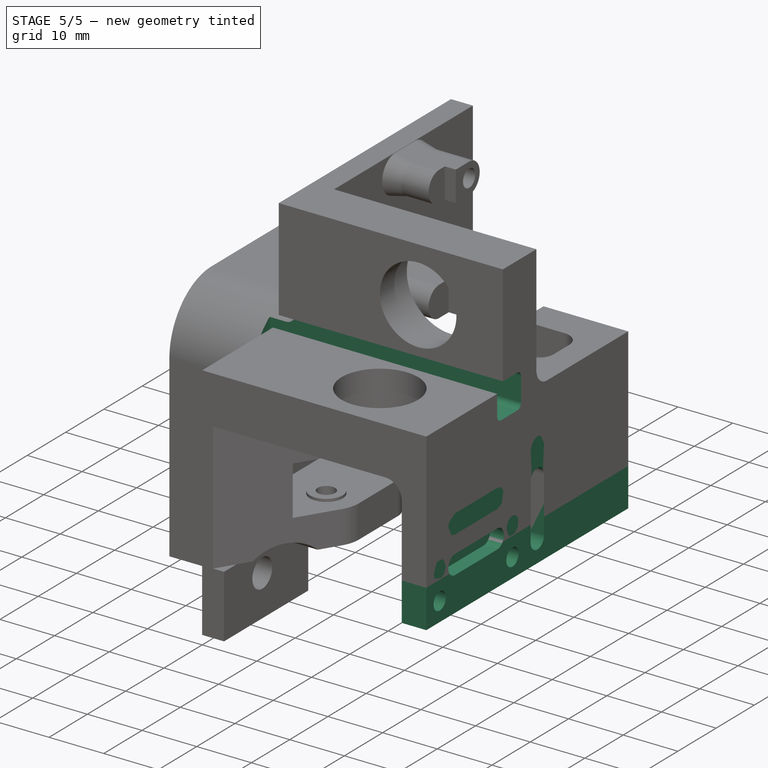
[diagram: stage 5 of 5 — iso view after this stage's code; geometry added in this stage tinted green]
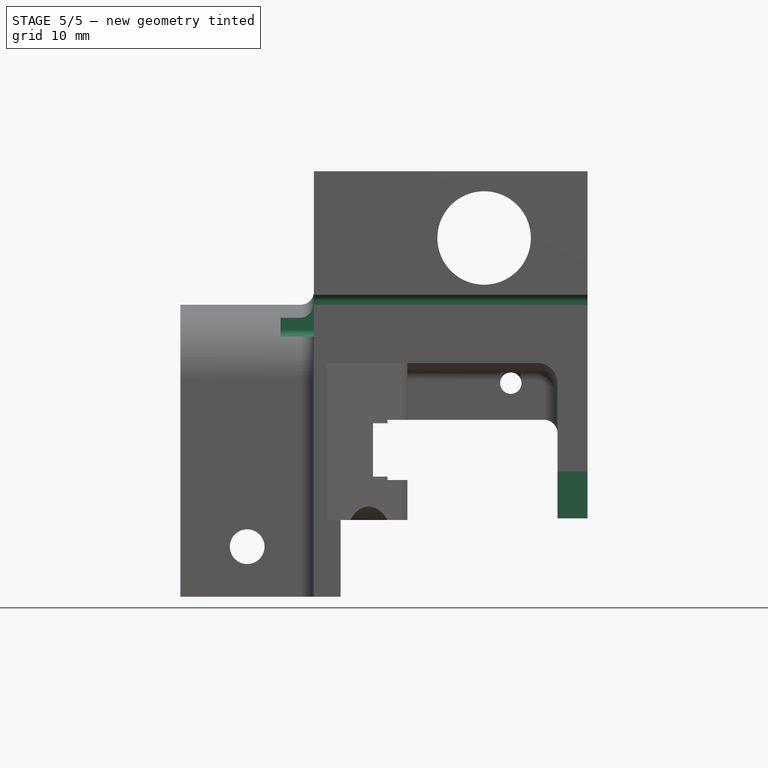
[diagram: stage 5 of 5 — front view after this stage's code; geometry added in this stage tinted green]
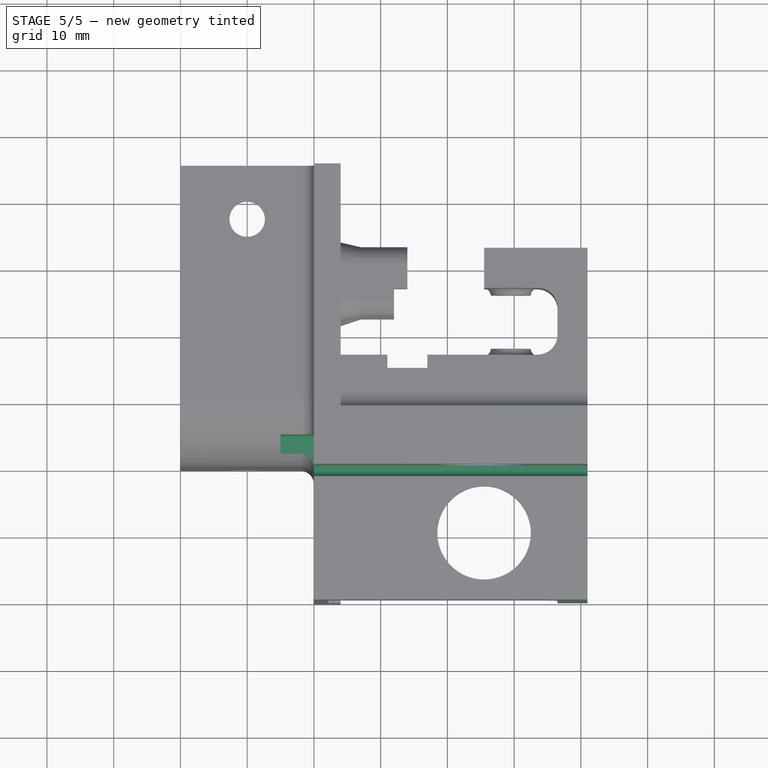
[diagram: stage 5 of 5 — top view after this stage's code; geometry added in this stage tinted green]
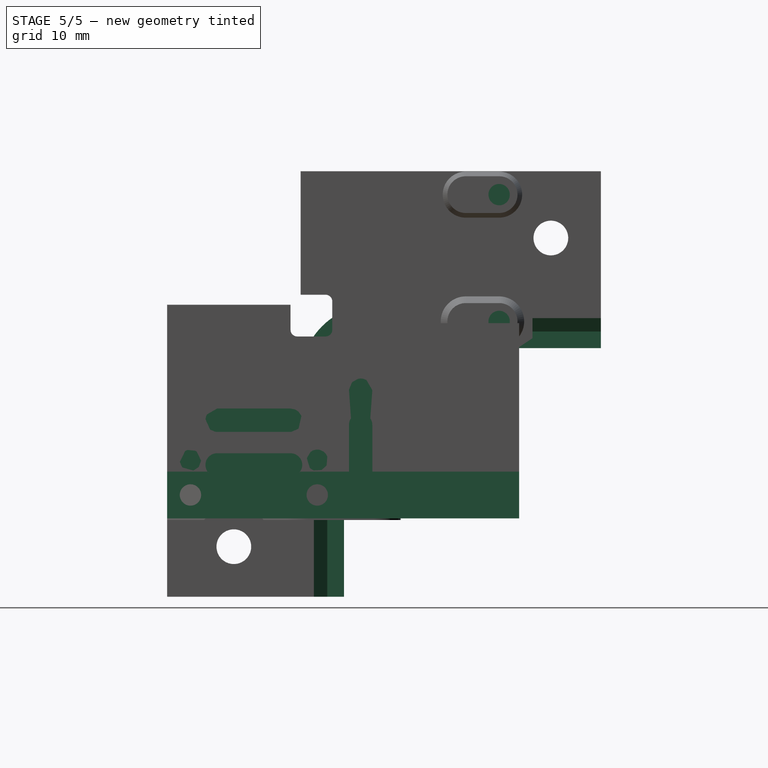
[diagram: stage 5 of 5 — right view after this stage's code; geometry added in this stage tinted green]
FEATURE [Sketcher::SketchObject] Sketch043
  ExternalGeometry = -> [Pocket015]
  FullyConstrained = true
  MapMode = 5
  Placement = pos=(41,0,0) rot=(0.57735,0.57735,0.57735;2.0944rad)
  Support = -> [Pocket015]
  sketch-geometry (7):
    g0: LineSegment StartX=-20 StartY=13 StartZ=0 EndX=32.75 EndY=13 EndZ=0
    g1: LineSegment StartX=32.75 StartY=13 StartZ=0 EndX=32.75 EndY=-10.25 EndZ=0
    g2: LineSegment StartX=32.75 StartY=-10.25 StartZ=0 EndX=-20 EndY=-10.25 EndZ=0
    g3: LineSegment StartX=-20 StartY=-10.25 StartZ=0 EndX=-20 EndY=13 EndZ=0
    g4: Circle CenterX=-16.5 CenterY=-6.75 CenterZ=0 NormalX=0 NormalY=0 NormalZ=1 AngleXU=0 Radius=1.6
    g5: LineSegment StartX=-16.5 StartY=-6.75 StartZ=0 EndX=2.5 EndY=-6.75 EndZ=0
    g6: Circle CenterX=2.5 CenterY=-6.75 CenterZ=0 NormalX=0 NormalY=0 NormalZ=1 AngleXU=0 Radius=1.6
  constraints (19):
    c: Coincident(g0,g1)
    c: Coincident(g1,g2)
    c: Coincident(g2,g3)
    c: Coincident(g3,g0)
    c: Horizontal(g0)
    c: Horizontal(g2)
    c: Vertical(g1)
    c: Vertical(g3)
    c: Coincident(g0,g-3)
    c: PointOnObject(g-4,g1)
    c: DistanceY(g1,g-4) = 7
    c: DistanceY(g2,g4) = 3.5
    c: DistanceX(g2,g4) = 3.5
    c: Radius(g4) = 1.6
    c: Coincident(g5,g4)
    c: Horizontal(g5)
    c: Coincident(g6,g5)
    c: Equal(g6,g4)
    c: DistanceX(g5,g5) = 19
FEATURE [PartDesign::Pad] Pad021
  BaseFeature = -> Pocket015
  Direction = (1,1,1)
  Length = 10
  Length2 = 100
  Profile = -> Sketch043
  Reversed = true
  Type = 3
  UpToFace = -> Pocket015 [Face199]
FEATURE [Sketcher::SketchObject] Sketch044
  ExternalGeometry = -> [Pad021]
  FullyConstrained = true
  MapMode = 5
  Placement = pos=(41,0,0) rot=(0.57735,0.57735,0.57735;2.0944rad)
  Support = -> [Pad021]
  sketch-geometry (8):
    g0: ArcOfCircle CenterX=-12.5 CenterY=-2.25 CenterZ=0 NormalX=0 NormalY=0 NormalZ=1 AngleXU=0 Radius=1.75 StartAngle=1.5708 EndAngle=4.71239
    g1: ArcOfCircle CenterX=-1.5 CenterY=-2.25 CenterZ=0 NormalX=0 NormalY=0 NormalZ=1 AngleXU=0 Radius=1.75 StartAngle=4.71239 EndAngle=7.85398
    g2: LineSegment StartX=-12.5 StartY=-4 StartZ=0 EndX=-1.5 EndY=-4 EndZ=0
    g3: LineSegment StartX=-12.5 StartY=-0.5 StartZ=0 EndX=-1.5 EndY=-0.5 EndZ=0
    g4: ArcOfCircle CenterX=9 CenterY=-6.25 CenterZ=0 NormalX=0 NormalY=0 NormalZ=1 AngleXU=0 Radius=1.75 StartAngle=3.14159 EndAngle=6.28319
    g5: ArcOfCircle CenterX=9 CenterY=3.75 CenterZ=0 NormalX=0 NormalY=0 NormalZ=1 AngleXU=0 Radius=1.75 StartAngle=0 EndAngle=3.14159
    g6: LineSegment StartX=10.75 StartY=-6.25 StartZ=0 EndX=10.75 EndY=3.75 EndZ=0
    g7: LineSegment StartX=7.25 StartY=-6.25 StartZ=0 EndX=7.25 EndY=3.75 EndZ=0
  constraints (20):
    c: Tangent(g0,g3) = 1.5708
    c: Tangent(g0,g2) = -1.5708
    c: Tangent(g2,g1) = -1.5708
    c: Tangent(g3,g1) = 1.5708
    c: Horizontal(g2)
    c: Equal(g0,g1)
    c: DistanceY(g0,g0) = 3.5
    c: DistanceX(g2,g2) = 11
    c: DistanceX(g-4,g0) = 4
    c: DistanceY(g-4,g0) = 4.5
    c: Tangent(g4,g7) = 1.5708
    c: Tangent(g4,g6) = -1.5708
    c: Tangent(g6,g5) = -1.5708
    c: Tangent(g7,g5) = 1.5708
    c: Vertical(g6)
    c: Equal(g4,g5)
    c: DistanceY(g6,g6) = 10
    c: DistanceX(g-3,g4) = 6.5
    c: DistanceX(g4,g4) = 3.5
    c: DistanceY(g-3,g4) = 0.5
FEATURE [PartDesign::Pocket] Pocket016
  BaseFeature = -> Pad021
  Length = 2.5
  Length2 = 100
  Profile = -> Sketch044
  Type = 0
FEATURE [Sketcher::SketchObject] Sketch045
  ExternalGeometry = -> [Pocket016]
  FullyConstrained = true
  MapMode = 5
  Placement = pos=(12,0,0) rot=(0.57735,0.57735,0.57735;2.0944rad)
  Support = -> [Pocket016]
  sketch-geometry (2):
    g0: Circle CenterX=29.75 CenterY=19.25 CenterZ=0 NormalX=0 NormalY=0 NormalZ=1 AngleXU=0 Radius=1.6
    g1: Circle CenterX=29.75 CenterY=38.25 CenterZ=0 NormalX=0 NormalY=0 NormalZ=1 AngleXU=0 Radius=1.6
  constraints (4):
    c: Coincident(g0,g-4)
    c: Coincident(g1,g-3)
    c: Radius(g1) = 1.6
    c: Radius(g0) = 1.6
FEATURE [PartDesign::Pocket] Pocket017
  BaseFeature = -> Pocket016
  Length = 10
  Length2 = 100
  Profile = -> Sketch045
  Type = 0
FEATURE [Sketcher::SketchObject] Sketch046
  ExternalGeometry = -> [Pocket017]
  FullyConstrained = true
  MapMode = 5
  Placement = pos=(41,0,0) rot=(0.57735,0.57735,0.57735;2.0944rad)
  Support = -> [Pocket017]
  sketch-geometry (7):
    g0: LineSegment StartX=-1.5 StartY=23.25 StartZ=0 EndX=3.75 EndY=23.25 EndZ=0
    g1: LineSegment StartX=4.75 StartY=22.25 StartZ=0 EndX=4.75 EndY=18 EndZ=0
    g2: LineSegment StartX=3.75 StartY=17 StartZ=0 EndX=-0.5 EndY=17 EndZ=0
    g3: LineSegment StartX=-1.5 StartY=18 StartZ=0 EndX=-1.5 EndY=23.25 EndZ=0
    g4: ArcOfCircle CenterX=3.75 CenterY=18 CenterZ=0 NormalX=0 NormalY=0 NormalZ=1 AngleXU=0 Radius=1 StartAngle=4.71239 EndAngle=6.28319
    g5: ArcOfCircle CenterX=-0.5 CenterY=18 CenterZ=0 NormalX=0 NormalY=0 NormalZ=1 AngleXU=0 Radius=1 StartAngle=3.14159 EndAngle=4.71239
    g6: ArcOfCircle CenterX=3.75 CenterY=22.25 CenterZ=0 NormalX=0 NormalY=0 NormalZ=1 AngleXU=0 Radius=1 StartAngle=-1.8e-15 EndAngle=1.5708
  constraints (18):
    c: Coincident(g3,g0)
    c: Horizontal(g0)
    c: Horizontal(g2)
    c: Vertical(g1)
    c: Vertical(g3)
    c: DistanceY(g-3,g0) = 0.5
    c: DistanceX(g0,g-3) = 0.5
    c: Tangent(g2,g4) = 1.5708
    c: Tangent(g1,g4) = 1.5708
    c: Tangent(g2,g5) = 1.5708
    c: Tangent(g3,g5) = 1.5708
    c: Tangent(g0,g6) = 1.5708
    c: Tangent(g1,g6) = 1.5708
    c: DistanceX(g1,g-4) = 4
    c: DistanceY(g-5,g2) = 4
    c: Radius(g5) = 1
    c: Radius(g4) = 1
    c: Radius(g6) = 1
FEATURE [PartDesign::Pocket] Pocket018
  BaseFeature = -> Pocket017
  Length = 46
  Length2 = 100
  Profile = -> Sketch046
  Type = 0
FEATURE [Sketcher::SketchObject] Sketch047
  ExternalGeometry = -> [Pocket018]
  FullyConstrained = true
  MapMode = 5
  Placement = pos=(0,16.75,0) rot=(0,0.707107,0.707107;3.14159rad)
  Support = -> [Pocket018]
  sketch-geometry (4):
    g0: LineSegment StartX=-15 StartY=4.5 StartZ=0 EndX=-17 EndY=4.5 EndZ=0
    g1: LineSegment StartX=-17 StartY=4.5 StartZ=0 EndX=-17 EndY=19 EndZ=0
    g2: LineSegment StartX=-17 StartY=19 StartZ=0 EndX=-15 EndY=19 EndZ=0
    g3: LineSegment StartX=-15 StartY=19 StartZ=0 EndX=-15 EndY=4.5 EndZ=0
  constraints (11):
    c: Coincident(g0,g1)
    c: Coincident(g1,g2)
    c: Coincident(g2,g3)
    c: Coincident(g3,g0)
    c: Horizontal(g0)
    c: Horizontal(g2)
    c: Vertical(g1)
    c: Vertical(g3)
    c: Coincident(g0,g-3)
    c: PointOnObject(g-4,g2)
    c: DistanceX(g0,g0) = 2
FEATURE [PartDesign::Pocket] Pocket019
  BaseFeature = -> Pocket018
  Length = 0
  Length2 = 100
  Profile = -> Sketch047
  Type = 3
  UpToFace = -> Pocket018 [Face79]
FEATURE [Sketcher::SketchObject] Sketch048
  ExternalGeometry = -> [Pocket018]
  FullyConstrained = true
  MapMode = 5
  Placement = pos=(-20,0,0) rot=(0.57735,-0.57735,-0.57735;2.0944rad)
  Support = -> [Pocket018]
  sketch-geometry (8):
    g0: LineSegment StartX=-2 StartY=-22 StartZ=0 EndX=-6.5 EndY=-22 EndZ=0
    g1: LineSegment StartX=-6.5 StartY=-22 StartZ=0 EndX=-6.5 EndY=10.75 EndZ=0
    g2: LineSegment StartX=-11 StartY=15.25 StartZ=0 EndX=-45 EndY=15.25 EndZ=0
    g3: LineSegment StartX=-45 StartY=15.25 StartZ=0 EndX=-45 EndY=19.75 EndZ=0
    g4: LineSegment StartX=-45 StartY=19.75 StartZ=0 EndX=-11 EndY=19.75 EndZ=0
    g5: LineSegment StartX=-2 StartY=10.75 StartZ=0 EndX=-2 EndY=-22 EndZ=0
    g6: ArcOfCircle CenterX=-11 CenterY=10.75 CenterZ=0 NormalX=0 NormalY=0 NormalZ=1 AngleXU=0 Radius=9 StartAngle=0 EndAngle=1.5708
    g7: ArcOfCircle CenterX=-11 CenterY=10.75 CenterZ=0 NormalX=0 NormalY=0 NormalZ=1 AngleXU=0 Radius=4.5 StartAngle=0 EndAngle=1.5708
  constraints (20):
    c: Coincident(g0,g-6)
    c: Horizontal(g0)
    c: Coincident(g0,g1)
    c: Vertical(g1)
    c: Horizontal(g2)
    c: Coincident(g2,g3)
    c: Coincident(g3,g-3)
    c: Vertical(g3)
    c: Coincident(g3,g4)
    c: Coincident(g4,g-4)
    c: Coincident(g5,g-5)
    c: Coincident(g5,g0)
    c: Coincident(g6,g-7)
    c: Coincident(g6,g4)
    c: Coincident(g6,g5)
    c: DistanceY(g3,g3) = 4.5
    c: DistanceX(g0,g0) = 4.5
    c: Coincident(g7,g6)
    c: Coincident(g7,g2)
    c: Tangent(g7,g1) = -1.5708
FEATURE [PartDesign::Pad] Pad022
  BaseFeature = -> Pocket019
  Direction = (1,1,1)
  Length = 2
  Length2 = 100
  Profile = -> Sketch048
  Reversed = true
  Type = 0
FEATURE [PartDesign::Chamfer] Chamfer002
  Angle = 45
  Base = -> Pad022 [Edge151]
  BaseFeature = -> Pad022
  ChamferType = 1
  FlipDirection = false
  Size = 1
  Size2 = 2
  SupportTransform = false
FEATURE [Sketcher::SketchObject] Sketch049
  ExternalGeometry = -> [Chamfer002]
  FullyConstrained = true
  MapMode = 5
  Placement = pos=(-11,-1.8e-15,0) rot=(0.57735,-0.57735,-0.57735;2.0944rad)
  Support = -> [Chamfer002]
  sketch-geometry (1):
    g0: Circle CenterX=-15 CenterY=6.75 CenterZ=0 NormalX=0 NormalY=0 NormalZ=1 AngleXU=0 Radius=8.15
  constraints (2):
    c: Coincident(g0,g-3)
    c: Radius(g0) = 8.15
FEATURE [PartDesign::Pocket] Pocket020
  BaseFeature = -> Chamfer002
  Length = 0
  Length2 = 100
  Profile = -> Sketch049
  Type = 3
  UpToFace = -> Chamfer002 [Face208]
FEATURE [Sketcher::SketchObject] Sketch050
  ExternalGeometry = -> [Pocket020]
  FullyConstrained = true
  MapMode = 5
  Placement = pos=(1.3e-15,0,13) rot=(1,0,0;3.14159rad)
  Support = -> [Pocket020]
  sketch-geometry (1):
    g0: Circle CenterX=25.5 CenterY=10 CenterZ=0 NormalX=0 NormalY=0 NormalZ=1 AngleXU=0 Radius=8.2
  constraints (2):
    c: Coincident(g-4,g0)
    c: Radius(g0) = 8.2
FEATURE [PartDesign::Pocket] Pocket021
  BaseFeature = -> Pocket020
  Length = 5
  Length2 = 100
  Profile = -> Sketch050
  Type = 0
FEATURE [Sketcher::SketchObject] Sketch051
  ExternalGeometry = -> [Pocket021]
  FullyConstrained = true
  MapMode = 5
  Placement = pos=(0,8.75,0) rot=(0,0.707107,0.707107;3.14159rad)
  Support = -> [Pocket021]
  sketch-geometry (1):
    g0: Circle CenterX=-25.5 CenterY=31.75 CenterZ=0 NormalX=0 NormalY=0 NormalZ=1 AngleXU=0 Radius=8.2
  constraints (2):
    c: Coincident(g0,g-3)
    c: Radius(g0) = 8.2
FEATURE [PartDesign::Pocket] Pocket022
  BaseFeature = -> Pocket021
  Length = 5
  Length2 = 100
  Profile = -> Sketch051
  Type = 0
FEATURE [Sketcher::SketchObject] Sketch052
  ExternalGeometry = -> [Pocket022]
  FullyConstrained = true
  MapMode = 5
  Placement = pos=(-11,0,0) rot=(0.57735,-0.57735,-0.57735;2.0944rad)
  Support = -> [Pocket022]
  sketch-geometry (8):
    g0: LineSegment StartX=-28.75 StartY=6.75 StartZ=0 EndX=-28.75 EndY=19.75 EndZ=0
    g1: ArcOfCircle CenterX=-18 CenterY=-9.72915 CenterZ=0 NormalX=0 NormalY=0 NormalZ=1 AngleXU=0 Radius=3 StartAngle=0.391683 EndAngle=1.39072
    g2: LineSegment StartX=-15.2272 StartY=-8.58392 StartZ=0 EndX=-2 EndY=-8.58392 EndZ=0
    g3: ArcOfCircle CenterX=-15 CenterY=6.75 CenterZ=0 NormalX=0 NormalY=0 NormalZ=1 AngleXU=0 Radius=13.75 StartAngle=3.14159 EndAngle=4.53231
    g4: Circle CenterX=-15 CenterY=6.75 CenterZ=0 NormalX=0 NormalY=0 NormalZ=1 AngleXU=0 Radius=8.4
    g5: ArcOfCircle CenterX=-11 CenterY=10.75 CenterZ=0 NormalX=0 NormalY=0 NormalZ=1 AngleXU=0 Radius=9 StartAngle=-9e-16 EndAngle=1.5708
    g6: LineSegment StartX=-11 StartY=19.75 StartZ=0 EndX=-28.75 EndY=19.75 EndZ=0
    g7: LineSegment StartX=-2 StartY=10.75 StartZ=0 EndX=-2 EndY=-8.58392 EndZ=0
  constraints (20):
    c: Coincident(g0,g-3)
    c: Coincident(g1,g-5)
    c: Coincident(g1,g-5)
    c: Coincident(g1,g-5)
    c: Coincident(g2,g1)
    c: Horizontal(g2)
    c: Coincident(g3,g-9)
    c: Coincident(g3,g0)
    c: Coincident(g3,g1)
    c: Coincident(g4,g3)
    c: Radius(g4) = 8.4
    c: Coincident(g5,g-10)
    c: Coincident(g5,g-10)
    c: Coincident(g5,g-10)
    c: Coincident(g6,g5)
    c: Coincident(g6,g-7)
    c: Coincident(g7,g5)
    c: Vertical(g7)
    c: Coincident(g7,g2)
    c: Coincident(g0,g6)
FEATURE [PartDesign::Pad] Pad023
  BaseFeature = -> Pocket022
  Direction = (1,1,1)
  Length = 10
  Length2 = 100
  Profile = -> Sketch052
  Type = 3
  UpToFace = -> Pocket022 [Face18]
FEATURE [PartDesign::Body] Body
  BaseFeature = -> Part__Feature128
  Group = -> [BaseFeature,Sketch,Sketch001,AdditivePipe,Sketch003,Pad,Sketch005,Pocket,Sketch006,Pad001,Sketch007,Pad002,Sketch009,Pad004,Sketch010,Pad005,Sketch011,Pocket001,Sketch012,Pad006,Sketch013,Pocket002,Sketch014,Pad007,Sketch016,Pocket003,Sketch017,Pad008,Sketch018,Pad009,Fillet,Fillet001,Fillet002,Sketch019,Pad010,Sketch020,Pad011,Sketch021,Pad012,Sketch022,Pocket004,Sketch023,Pocket005,Sketch024,+56 more]
  Origin = -> Origin001
  Tip = -> Pad023
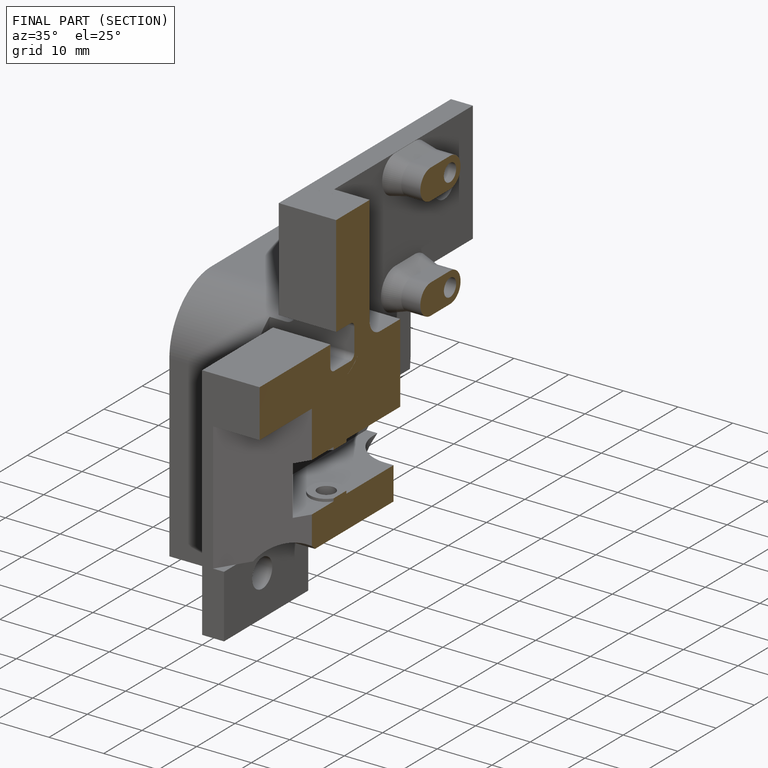
[diagram: finished part — half-section view (interior)]
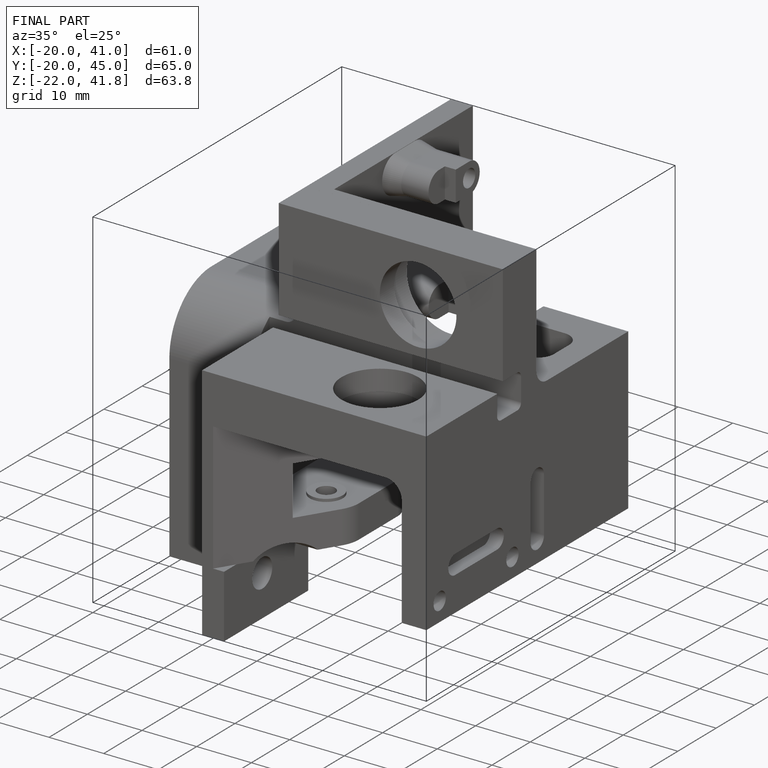
[diagram: finished part — iso view with bounding-box wireframe]
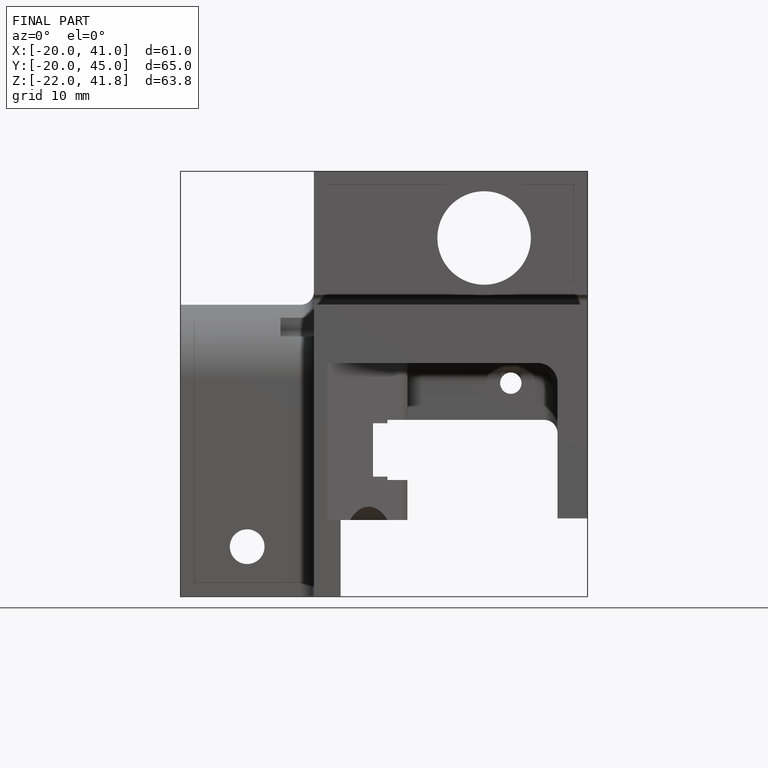
[diagram: finished part — front view with bounding-box wireframe]
